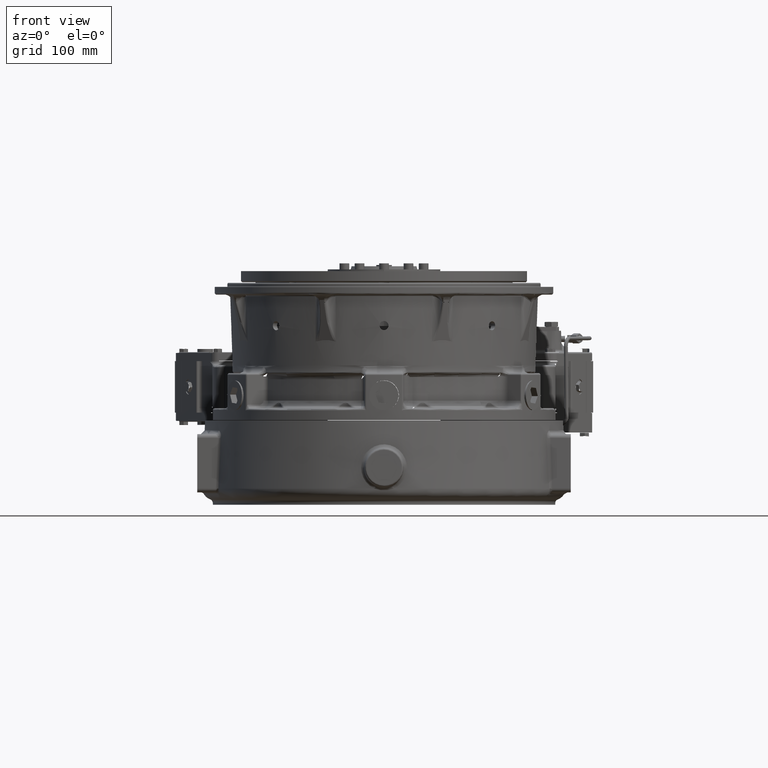
[diagram: clean part render]
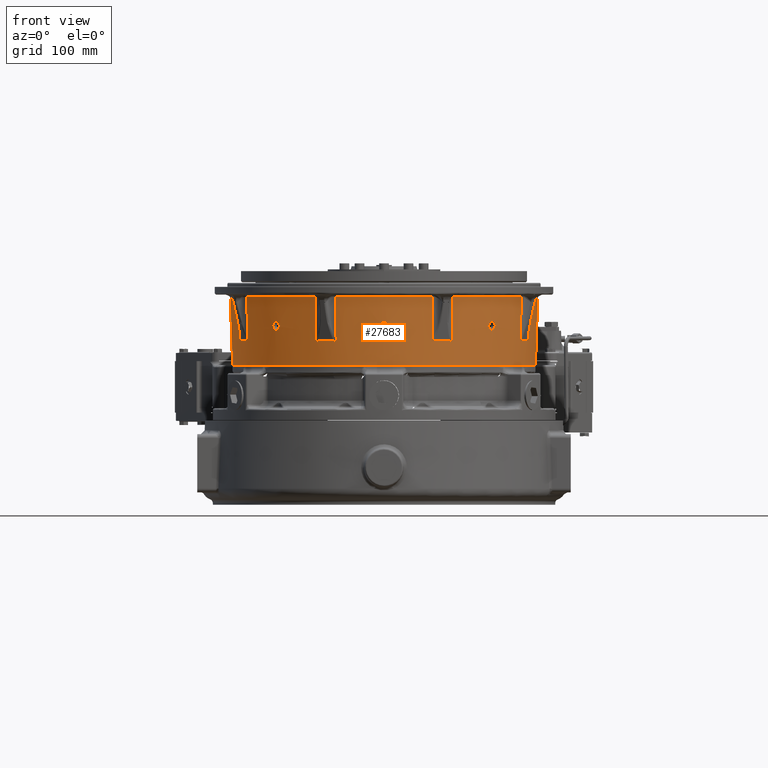
[diagram: same view with one face highlighted and labeled with its STEP entity id]
A machine part, front view. The second image highlights one B-rep face of the part: STEP entity #27683.
In plain terms, the highlighted conical surface has half-angle 2 deg.
Its self-contained STEP definition (entity closure, byte-faithful):
#113 = LINE ( 'NONE', #96304, #77769 ) ;
#346 = ORIENTED_EDGE ( 'NONE', *, *, #93084, .T. ) ;
#410 = ORIENTED_EDGE ( 'NONE', *, *, #104007, .T. ) ;
#816 = CARTESIAN_POINT ( 'NONE',  ( -100.2183333322097100, -227.6961214047557000, -9.449804460212078500 ) ) ;
#1491 = CARTESIAN_POINT ( 'NONE',  ( -250.9940910559222400, -2.342320196280900400E-018, 60.93489819042718400 ) ) ;
#1787 = CARTESIAN_POINT ( 'NONE',  ( 249.5169231496629700, -3.679563816112412700, 19.40194821412615100 ) ) ;
#2450 = ORIENTED_EDGE ( 'NONE', *, *, #118367, .T. ) ;
#2597 = B_SPLINE_CURVE_WITH_KNOTS ( 'NONE', 3,
 ( #79636, #166381, #123623, #36242, #138281, #50838, #152929, #65576 ),
 .UNSPECIFIED., .F., .F.,
 ( 4, 2, 2, 4 ),
 ( 1.288959077545831700E-016, 0.0009025367825192594700, 0.001353805173778824700, 0.001805073565038389900 ),
 .UNSPECIFIED. ) ;
#3239 = CARTESIAN_POINT ( 'NONE',  ( -221.9659547761087900, -111.5586079967920100, -12.67898017056965400 ) ) ;
#3261 = CARTESIAN_POINT ( 'NONE',  ( 111.2879578949107600, -222.1003324085622000, -12.72118009717270800 ) ) ;
#3484 = CARTESIAN_POINT ( 'NONE',  ( -111.5586079967912100, -221.9659547761091300, -12.67898017057236300 ) ) ;
#3512 = CARTESIAN_POINT ( 'NONE',  ( -238.2940664596691800, -78.82814924872489800, 60.92646230354289100 ) ) ;
#3874 = CARTESIAN_POINT ( 'NONE',  ( 237.9470035667418400, -78.93492022985181200, 52.45653624221922200 ) ) ;
#4038 = CARTESIAN_POINT ( 'NONE',  ( -112.5527010781521500, -224.3423264571619600, 60.90958207169841600 ) ) ;
#4295 = CARTESIAN_POINT ( 'NONE',  ( 249.0677901768884500, -2.585805769048509900, 6.154267351912878300 ) ) ;
#4668 = CARTESIAN_POINT ( 'NONE',  ( -179.5788840619370300, -173.2465370089363700, 18.86862636663028400 ) ) ;
#4935 = CARTESIAN_POINT ( 'NONE',  ( 249.1808207169722500, -7.294327632190746000, 12.06566399890916400 ) ) ;
#5294 = CARTESIAN_POINT ( 'NONE',  ( -174.7878123660976500, -178.1334053801694200, 19.98499080898047000 ) ) ;
#5314 = VERTEX_POINT ( 'NONE', #151502 ) ;
#5349 = ORIENTED_EDGE ( 'NONE', *, *, #108961, .T. ) ;
#5419 = ORIENTED_EDGE ( 'NONE', *, *, #141828, .T. ) ;
#5611 = CARTESIAN_POINT ( 'NONE',  ( -2.697525987788705500E-014, -249.5776210294380600, 20.37238749999999900 ) ) ;
#5925 = CARTESIAN_POINT ( 'NONE',  ( -171.4322985897826500, -181.1549901001740500, 15.61865409558963900 ) ) ;
#6149 = B_SPLINE_CURVE_WITH_KNOTS ( 'NONE', 3,
 ( #37611, #22891, #52229, #154301, #66939, #169016, #81631, #183782, #96271, #8829, #110921, #23540, #125604, #38265, #140287, #52877, #154940, #67589, #169640, #82260, #184406, #96915, #9479, #111527, #24173, #126236, #38892, #140919, #53510, #155592, #68228, #173234, #108749, #21355, #123468, #36078, #138106, #50683, #152773, #65430, #167488, #80106, #182248 ),
 .UNSPECIFIED., .F., .F.,
 ( 4, 2, 2, 2, 2, 2, 2, 2, 2, 2, 2, 2, 2, 2, 2, 2, 2, 2, 1, 2, 2, 4 ),
 ( 0.03443665302224129700, 0.03587116242817090000, 0.03658841713113569800, 0.03730567183410048900, 0.03874018124003005700, 0.04017469064595962500, 0.04160920005188920000, 0.04232645475485401200, 0.04304370945781881700, 0.04447821886374848900, 0.04591272826967816900, 0.04734723767560784100, 0.04806449237857267400, 0.04878174708153751300, 0.05021625648746724100, 0.05165076589339696900, 0.05308527529932670400, 0.05380253000229155700, 0.05451978470525642400, 0.05523703940822128500, 0.05595429411118614500, 0.05738880351711586600 ),
 .UNSPECIFIED. ) ;
#6201 = CARTESIAN_POINT ( 'NONE',  ( 0.9631031104574945300, -249.5745371774928600, 20.32465610581242300 ) ) ;
#6307 = CARTESIAN_POINT ( 'NONE',  ( 171.3676973200891800, -181.2051927605366200, 15.39187354653925300 ) ) ;
#6742 = CARTESIAN_POINT ( 'NONE',  ( -111.2861867603738200, -222.1014253639777100, -12.71198317609772700 ) ) ;
#6818 = CARTESIAN_POINT ( 'NONE',  ( 235.2716546133284500, -79.77536040136244800, -12.52615995202785500 ) ) ;
#6932 = CARTESIAN_POINT ( 'NONE',  ( 174.7893841879868300, -178.1319029822402100, 19.98577372818888900 ) ) ;
#7136 = EDGE_CURVE ( 'NONE', #75276, #37425, #103951, .T. ) ;
#7334 = CARTESIAN_POINT ( 'NONE',  ( 180.0482357133715000, -172.2191931111105700, 8.183136735723325100 ) ) ;
#7460 = CARTESIAN_POINT ( 'NONE',  ( 221.9659547761094400, -111.5586079967904100, -12.67898017057217400 ) ) ;
#7470 = CARTESIAN_POINT ( 'NONE',  ( 2.360706939928875600, -249.5530932801055100, 19.98669416359424400 ) ) ;
#7558 = CARTESIAN_POINT ( 'NONE',  ( 179.0375246349053100, -173.8326453363503100, 19.40139194612936900 ) ) ;
#7953 = CARTESIAN_POINT ( 'NONE',  ( 175.4418418218114100, -176.7893595896483100, 5.734223705187466700 ) ) ;
#8072 = CARTESIAN_POINT ( 'NONE',  ( 7.094562602216053700, -249.2868591467646700, 14.93610740221136800 ) ) ;
#8160 = CARTESIAN_POINT ( 'NONE',  ( 181.4119796639312200, -171.0285585239493600, 13.03019999999999700 ) ) ;
#8563 = CARTESIAN_POINT ( 'NONE',  ( 171.7360095941446900, -180.5553775613765000, 9.147497818331492800 ) ) ;
#8569 = CARTESIAN_POINT ( 'NONE',  ( -249.5537187550328600, -2.365304006908956100, 19.99757248063086100 ) ) ;
#8676 = CARTESIAN_POINT ( 'NONE',  ( 6.239033666946191700, -249.1077196593794600, 9.152125632269834600 ) ) ;
#8829 = CARTESIAN_POINT ( 'NONE',  ( -172.0078600590861400, -180.2679906227505700, 8.555541411574832700 ) ) ;
#8945 = CARTESIAN_POINT ( 'NONE',  ( 221.9659547761094400, -111.5586079967904100, -12.67898017057217400 ) ) ;
#9207 = CARTESIAN_POINT ( 'NONE',  ( -249.3064650520635400, -6.968085305731897000, 15.39353726007674600 ) ) ;
#9329 = CARTESIAN_POINT ( 'NONE',  ( 222.7718807094694000, -109.9524840866567100, -12.52615995202787900 ) ) ;
#9334 = CARTESIAN_POINT ( 'NONE',  ( -2.763673271857520100E-014, -249.0648328244894300, 5.688012499999997500 ) ) ;
#9410 = DIRECTION ( 'NONE',  ( -1.000000000000000000, 0.0000000000000000000, 2.764564645612004300E-017 ) ) ;
#9479 = CARTESIAN_POINT ( 'NONE',  ( -176.7998394104904800, -175.4313788443404000, 5.736354684307689100 ) ) ;
#11496 = CARTESIAN_POINT ( 'NONE',  ( -222.7718807094686000, -109.9524840866582700, -12.52615995202787700 ) ) ;
#12142 = CARTESIAN_POINT ( 'NONE',  ( -6.364313227730154000, -249.1118453323174200, 9.361231641757468600 ) ) ;
#12311 = CARTESIAN_POINT ( 'NONE',  ( 112.5527010781536900, -224.3423264571611400, 60.90958207169841600 ) ) ;
#12779 = CARTESIAN_POINT ( 'NONE',  ( -6.587758009084237400, -249.3477588822936500, 16.28085768902153100 ) ) ;
#12828 = CARTESIAN_POINT ( 'NONE',  ( -249.1361059684436700, -6.876345730197922300, 10.44549863671590900 ) ) ;
#13264 = CARTESIAN_POINT ( 'NONE',  ( -247.0598586614216900, 4.413389431856521600E-014, -51.72709999999997900 ) ) ;
#13417 = VERTEX_POINT ( 'NONE', #86741 ) ;
#13424 = CARTESIAN_POINT ( 'NONE',  ( -0.9615955571566913200, -249.5745501714043500, 20.32485817365054000 ) ) ;
#13469 = CARTESIAN_POINT ( 'NONE',  ( -249.0650804826196300, -0.9650385293360093100, 5.735923837270495300 ) ) ;
#13569 = CARTESIAN_POINT ( 'NONE',  ( -111.8963838528962900, -222.7733539652113600, 12.32343494379175800 ) ) ;
#13699 = CARTESIAN_POINT ( 'NONE',  ( -224.0310926411175700, -113.1728910782772900, 60.93489819042719100 ) ) ;
#15352 = CIRCLE ( 'NONE', #88592, 247.0637268876994300 ) ;
#15858 = CARTESIAN_POINT ( 'NONE',  ( 249.2767519867984400, -7.154752338187645200, 14.69618908072471400 ) ) ;
#16278 = VERTEX_POINT ( 'NONE', #175551 ) ;
#16497 = CARTESIAN_POINT ( 'NONE',  ( 249.5479224090842400, -2.590951248049990800, 19.90425165634809100 ) ) ;
#17041 = VERTEX_POINT ( 'NONE', #81417 ) ;
#17042 = CARTESIAN_POINT ( 'NONE',  ( -235.4556974725935800, -79.21561501830217400, -12.66737857491026500 ) ) ;
#18472 = VERTEX_POINT ( 'NONE', #161140 ) ;
#18550 = CARTESIAN_POINT ( 'NONE',  ( 237.6732452362046500, -78.82264061962138200, 44.00349049119784400 ) ) ;
#18769 = CARTESIAN_POINT ( 'NONE',  ( 238.2207585182499100, -79.04720217179951200, 60.90958207169843100 ) ) ;
#18960 = CARTESIAN_POINT ( 'NONE',  ( 249.0718243915318600, -3.673238840603210200, 6.654507786170657200 ) ) ;
#19004 = VECTOR ( 'NONE', #115324, 1000.000000000000000 ) ;
#19172 = AXIS2_PLACEMENT_3D ( 'NONE', #32575, #134613, #47230 ) ;
#19320 = CARTESIAN_POINT ( 'NONE',  ( -179.0337317158536900, -173.8356879489272400, 19.39069457398833800 ) ) ;
#19462 = CARTESIAN_POINT ( 'NONE',  ( 0.0000000000000000000, 1.387778780781445700E-014, 60.93489819042719100 ) ) ;
#19583 = CARTESIAN_POINT ( 'NONE',  ( 249.2130945176865600, -7.342187500002586000, 13.03020000000001500 ) ) ;
#19684 = DIRECTION ( 'NONE',  ( 1.618630747420212500E-017, 1.508887532773326900E-018, -1.000000000000000000 ) ) ;
#19946 = CARTESIAN_POINT ( 'NONE',  ( -174.1467115756502700, -178.7423181252887000, 19.61849091580965500 ) ) ;
#20152 = CARTESIAN_POINT ( 'NONE',  ( -236.1074037443227400, -78.18047255406244700, -4.344841877305895200 ) ) ;
#20451 = CARTESIAN_POINT ( 'NONE',  ( -224.3423264571615600, -112.5527010781529500, 60.90958207169841600 ) ) ;
#20584 = CARTESIAN_POINT ( 'NONE',  ( -171.2539674700625200, -181.2903904612049900, 14.92784351799993400 ) ) ;
#20965 = CARTESIAN_POINT ( 'NONE',  ( 171.6476469908130000, -180.9828720666890000, 16.28031285130775900 ) ) ;
#21355 = CARTESIAN_POINT ( 'NONE',  ( -180.5581880062147500, -171.7333689638911100, 9.153702633268801800 ) ) ;
#21415 = CARTESIAN_POINT ( 'NONE',  ( -111.5586079967912100, -221.9659547761091300, -12.67898017057236300 ) ) ;
#21480 = B_SPLINE_CURVE_WITH_KNOTS ( 'NONE', 3,
 ( #105404, #3261, #32656, #134684, #47290, #149367 ),
 .UNSPECIFIED., .F., .F.,
 ( 4, 2, 4 ),
 ( -2.329155441674399800E-005, 0.0008920263873098077900, 0.001807344329036359600 ),
 .UNSPECIFIED. ) ;
#21584 = CARTESIAN_POINT ( 'NONE',  ( 175.2905183360724400, -177.6485420541423300, 20.18456729388184500 ) ) ;
#21991 = CARTESIAN_POINT ( 'NONE',  ( 179.5523692200458200, -172.7018403996274000, 7.507473003519096200 ) ) ;
#22103 = CARTESIAN_POINT ( 'NONE',  ( 3.257386955380027900, -249.5307582417643200, 19.62785993666732800 ) ) ;
#22207 = CARTESIAN_POINT ( 'NONE',  ( 179.8333478786806000, -172.9666361815276900, 18.55848546904138600 ) ) ;
#22604 = CARTESIAN_POINT ( 'NONE',  ( 174.7751098417154800, -177.4577985650024900, 5.933202289582298200 ) ) ;
#22737 = CARTESIAN_POINT ( 'NONE',  ( 7.295220781476316100, -249.2480202938926900, 13.98992036790203700 ) ) ;
#22891 = CARTESIAN_POINT ( 'NONE',  ( -171.0166061554501500, -181.4000272954357100, 12.54636418373218900 ) ) ;
#23262 = CARTESIAN_POINT ( 'NONE',  ( 171.4965021342054900, -180.8133078123313200, 9.779886352417870300 ) ) ;
#23269 = CARTESIAN_POINT ( 'NONE',  ( -249.5301666516152200, -3.251619356237932700, 19.61752943609787500 ) ) ;
#23405 = CARTESIAN_POINT ( 'NONE',  ( 5.536925647548446100, -249.0907010815248300, 8.184089015311425200 ) ) ;
#23540 = CARTESIAN_POINT ( 'NONE',  ( -172.6954188493544400, -179.5583888699447600, 7.499622848933962700 ) ) ;
#23915 = CARTESIAN_POINT ( 'NONE',  ( -249.2482583231190500, -7.294172360455487300, 13.99586256530436200 ) ) ;
#24173 = CARTESIAN_POINT ( 'NONE',  ( -177.4626824282950100, -174.7702426965096800, 5.935049867737485700 ) ) ;
#25157 = CARTESIAN_POINT ( 'NONE',  ( -78.38858607522902800, -238.4392235311023600, 60.93489819042719100 ) ) ;
#25348 = CARTESIAN_POINT ( 'NONE',  ( 235.8374800289969900, -78.06978360046844000, -12.67898017056836800 ) ) ;
#25420 = CARTESIAN_POINT ( 'NONE',  ( 78.18047255406328600, -236.1074037443224500, -4.344841877305500900 ) ) ;
#25831 = CARTESIAN_POINT ( 'NONE',  ( 78.60861068954733400, -238.3668888784277200, 60.93489819042713400 ) ) ;
#25903 = CONICAL_SURFACE ( 'NONE', #95391, 247.0598586614216900, 0.03490648508555534200 ) ;
#26177 = CARTESIAN_POINT ( 'NONE',  ( -231.8705345935974300, -90.14040839675833200, -9.449804460212034100 ) ) ;
#26196 = CARTESIAN_POINT ( 'NONE',  ( -1.665174647062925200, -249.0659178581000800, 5.875268492592884000 ) ) ;
#26839 = CARTESIAN_POINT ( 'NONE',  ( -6.695106888760939500, -249.1257161137180000, 10.00676528961459900 ) ) ;
#27307 = ORIENTED_EDGE ( 'NONE', *, *, #148985, .T. ) ;
#27463 = CARTESIAN_POINT ( 'NONE',  ( -6.236567071777932000, -249.3788599392850100, 16.91236736062239000 ) ) ;
#27514 = CARTESIAN_POINT ( 'NONE',  ( -249.1115475701501800, -6.376354235032671600, 9.358120926019161300 ) ) ;
#27525 = EDGE_CURVE ( 'NONE', #36671, #143696, #173478, .T. ) ;
#27683 = ADVANCED_FACE ( 'NONE', ( #126372, #87639, #121794, #83045 ), #25903, .T. ) ;
#28113 = CARTESIAN_POINT ( 'NONE',  ( -2.697525987788705500E-014, -249.5776210294380600, 20.37238749999999900 ) ) ;
#28167 = CARTESIAN_POINT ( 'NONE',  ( -249.0648328244894600, 4.429279995367262900E-014, 5.688012500000042800 ) ) ;
#28262 = CARTESIAN_POINT ( 'NONE',  ( -112.3339435877879900, -223.8193383600781500, 44.71419940594484600 ) ) ;
#28972 = VERTEX_POINT ( 'NONE', #66093 ) ;
#30024 = B_SPLINE_CURVE_WITH_KNOTS ( 'NONE', 3,
 ( #13699, #158555, #130442, #43083 ),
 .UNSPECIFIED., .F., .F.,
 ( 4, 4 ),
 ( 0.0000000000000000000, 0.0006943651995679417700 ),
 .UNSPECIFIED. ) ;
#30120 = EDGE_CURVE ( 'NONE', #77267, #96547, #186257, .T. ) ;
#30561 = CARTESIAN_POINT ( 'NONE',  ( 249.3066889244306900, -6.956092003814497100, 15.39203448241571900 ) ) ;
#31177 = CARTESIAN_POINT ( 'NONE',  ( 249.5619102299174000, -1.899700430405610900, 20.12647489869093700 ) ) ;
#31725 = CARTESIAN_POINT ( 'NONE',  ( -235.6445925574732900, -78.64607099665360600, -12.71659567995234700 ) ) ;
#32575 = CARTESIAN_POINT ( 'NONE',  ( 0.0000000000000000000, 1.387778780781445700E-014, 60.93489819042719100 ) ) ;
#32600 = ORIENTED_EDGE ( 'NONE', *, *, #85665, .T. ) ;
#32656 = CARTESIAN_POINT ( 'NONE',  ( 111.0136611635685700, -222.2374419686422000, -12.72418693653068000 ) ) ;
#32900 = CARTESIAN_POINT ( 'NONE',  ( -238.4392235311021000, -78.38858607522979600, 60.93489819042719100 ) ) ;
#33275 = EDGE_CURVE ( 'NONE', #44496, #151730, #155341, .T. ) ;
#33278 = CARTESIAN_POINT ( 'NONE',  ( 236.8788280914943700, -78.49682819978315300, 19.47396953443860900 ) ) ;
#33282 = B_SPLINE_CURVE_WITH_KNOTS ( 'NONE', 3,
 ( #112136, #25420, #142182, #54747, #156820, #69464, #171548 ),
 .UNSPECIFIED., .F., .F.,
 ( 4, 3, 4 ),
 ( 0.0003822713355039008100, 0.02540000000000314600, 0.07401590397922330800 ),
 .UNSPECIFIED. ) ;
#33446 = CARTESIAN_POINT ( 'NONE',  ( -181.2972772829824400, -171.2471510426174700, 14.93694125008273200 ) ) ;
#33698 = CARTESIAN_POINT ( 'NONE',  ( 249.0810283615861100, -4.851407926740880500, 7.497875320551088400 ) ) ;
#34063 = CARTESIAN_POINT ( 'NONE',  ( -178.5919947293529600, -174.3060610004645800, 19.72207238623920500 ) ) ;
#34075 = CARTESIAN_POINT ( 'NONE',  ( -78.82264061962223400, -237.6732452362043700, 44.00349049119782300 ) ) ;
#34170 = DIRECTION ( 'NONE',  ( -1.000000000000000000, 0.0000000000000000000, 2.764564645612004300E-017 ) ) ;
#34189 = CARTESIAN_POINT ( 'NONE',  ( 79.77536040136641300, -235.2716546133272900, -12.52615995202697400 ) ) ;
#34684 = ORIENTED_EDGE ( 'NONE', *, *, #105106, .T. ) ;
#34689 = CARTESIAN_POINT ( 'NONE',  ( -173.6850471664161300, -179.1738662462465200, 19.26739749098198800 ) ) ;
#35055 = CARTESIAN_POINT ( 'NONE',  ( 171.0404064058588700, -181.4238275458493800, 13.50980616493460200 ) ) ;
#35212 = CARTESIAN_POINT ( 'NONE',  ( -224.0693571520107500, -112.4385224181141900, 52.45653624221920100 ) ) ;
#35312 = CARTESIAN_POINT ( 'NONE',  ( -171.0868296734717500, -181.4031742747978100, 13.99102747101912100 ) ) ;
#35515 = CARTESIAN_POINT ( 'NONE',  ( -109.9524840866573800, -222.7718807094691200, -12.52615995202766200 ) ) ;
#35580 = CARTESIAN_POINT ( 'NONE',  ( 222.7718807094694000, -109.9524840866567100, -12.52615995202787900 ) ) ;
#35695 = CARTESIAN_POINT ( 'NONE',  ( 172.2318355610490200, -180.4865089573886800, 17.51042645216242400 ) ) ;
#36078 = CARTESIAN_POINT ( 'NONE',  ( -180.8156421314230600, -171.4943697639858700, 9.786375426079937200 ) ) ;
#36242 = CARTESIAN_POINT ( 'NONE',  ( 78.78906150228297600, -235.5970637034582800, -12.70998251020615700 ) ) ;
#36326 = CARTESIAN_POINT ( 'NONE',  ( 176.1345857849393300, -176.8214597568319800, 20.37226679484389500 ) ) ;
#36671 = VERTEX_POINT ( 'NONE', #116554 ) ;
#36727 = CARTESIAN_POINT ( 'NONE',  ( 179.0131872183672800, -173.2312871279438000, 6.917616740401409300 ) ) ;
#36855 = CARTESIAN_POINT ( 'NONE',  ( 4.476753902732458100, -249.4852931141934400, 18.86941332930079100 ) ) ;
#36948 = CARTESIAN_POINT ( 'NONE',  ( 180.4865377361072700, -172.2317848476377300, 17.51006238948978600 ) ) ;
#37358 = CARTESIAN_POINT ( 'NONE',  ( 174.2903695613502700, -177.9446701138685700, 6.153576625394671300 ) ) ;
#37425 = VERTEX_POINT ( 'NONE', #114520 ) ;
#37482 = CARTESIAN_POINT ( 'NONE',  ( 7.342340966651915000, -249.2048956776648400, 12.79564651408557900 ) ) ;
#37611 = CARTESIAN_POINT ( 'NONE',  ( -171.0285585239474800, -181.4119796639329300, 13.03020000000001500 ) ) ;
#37704 = ORIENTED_EDGE ( 'NONE', *, *, #33275, .T. ) ;
#37995 = CARTESIAN_POINT ( 'NONE',  ( 171.2421384027030300, -181.0969557382218800, 10.66773152210291900 ) ) ;
#38002 = CARTESIAN_POINT ( 'NONE',  ( -249.5088644664671200, -3.882811144633348200, 19.26628284461147800 ) ) ;
#38116 = CARTESIAN_POINT ( 'NONE',  ( 4.479831671958744500, -249.0774375145989300, 7.193442215331376000 ) ) ;
#38265 = CARTESIAN_POINT ( 'NONE',  ( -173.3760805742911400, -178.8667186540195900, 6.793835708224783300 ) ) ;
#38368 = EDGE_CURVE ( 'NONE', #18472, #44496, #48886, .T. ) ;
#38631 = CARTESIAN_POINT ( 'NONE',  ( -249.2130945176866400, -7.342187499999099900, 13.03020000000004000 ) ) ;
#38892 = CARTESIAN_POINT ( 'NONE',  ( -177.9518601318345900, -174.2832180387032100, 6.157342907582987300 ) ) ;
#39004 = CARTESIAN_POINT ( 'NONE',  ( -227.6961214047552500, -100.2183333322103500, -9.449804460212062600 ) ) ;
#39309 =( BOUNDED_CURVE ( )  B_SPLINE_CURVE ( 3, ( #146319, #44239, #816, #102940 ),
 .UNSPECIFIED., .F., .F. ) 
 B_SPLINE_CURVE_WITH_KNOTS ( ( 4, 4 ),
 ( 6.208192351955339900, 6.358178262403834300 ),
 .UNSPECIFIED. ) 
 CURVE ( )  GEOMETRIC_REPRESENTATION_ITEM ( )  RATIONAL_B_SPLINE_CURVE ( ( 1.000000000000000000, 0.9981262306336318200, 0.9981262306336318200, 1.000000000000000000 ) ) 
 REPRESENTATION_ITEM ( '' )  );
#39676 = CARTESIAN_POINT ( 'NONE',  ( -171.0285585239474800, -181.4119796639329300, 13.03020000000001500 ) ) ;
#40354 = CARTESIAN_POINT ( 'NONE',  ( 224.0310926411182500, -113.1728910782757500, 60.93489819042719100 ) ) ;
#40914 = CARTESIAN_POINT ( 'NONE',  ( -2.361951107543644600, -249.0672238260762300, 6.074137133451064800 ) ) ;
#41499 = CIRCLE ( 'NONE', #66950, 250.9940910559222400 ) ;
#41538 = CARTESIAN_POINT ( 'NONE',  ( -7.108729034954225600, -249.1535604745135400, 11.13181230118593000 ) ) ;
#42166 = CARTESIAN_POINT ( 'NONE',  ( -5.529950772538986900, -249.4296511088215900, 17.88369387855154000 ) ) ;
#42214 = CARTESIAN_POINT ( 'NONE',  ( -249.0906355855299000, -5.533250876128597000, 8.179854091107685600 ) ) ;
#42308 = CARTESIAN_POINT ( 'NONE',  ( -111.5586079967912100, -221.9659547761091300, -12.67898017057236300 ) ) ;
#43057 = CARTESIAN_POINT ( 'NONE',  ( -238.4392235311021000, -78.38858607522979600, 60.93489819042719100 ) ) ;
#43083 = CARTESIAN_POINT ( 'NONE',  ( -224.3423264571615600, -112.5527010781529500, 60.90958207169841600 ) ) ;
#43952 = EDGE_CURVE ( 'NONE', #162098, #28972, #33282, .T. ) ;
#44239 = CARTESIAN_POINT ( 'NONE',  ( -90.14040839675794800, -231.8705345935978000, -9.449804460212030600 ) ) ;
#44466 = CARTESIAN_POINT ( 'NONE',  ( 247.0637268876994000, 4.413403365332700700E-014, -51.61632817510472600 ) ) ;
#44496 = VERTEX_POINT ( 'NONE', #69881 ) ;
#44607 = CARTESIAN_POINT ( 'NONE',  ( 249.2130945176865600, -7.342187500002586000, 13.03020000000001500 ) ) ;
#44756 = DIRECTION ( 'NONE',  ( 1.000000000000000000, 0.0000000000000000000, -2.808588146007360300E-017 ) ) ;
#45233 = CARTESIAN_POINT ( 'NONE',  ( 249.3475132422839200, -6.590286448820293700, 16.27573971322971500 ) ) ;
#45438 = CARTESIAN_POINT ( 'NONE',  ( 79.77536040136641300, -235.2716546133272900, -12.52615995202697400 ) ) ;
#45819 = CARTESIAN_POINT ( 'NONE',  ( -79.04720217180033600, -238.2207585182497100, 60.90958207169843100 ) ) ;
#45851 = CARTESIAN_POINT ( 'NONE',  ( 249.5745458857843500, -0.9622645120994820500, 20.32479212346766000 ) ) ;
#46402 = CARTESIAN_POINT ( 'NONE',  ( -235.7899731972995300, -78.21098295269300100, -12.69978550174055300 ) ) ;
#46497 = VERTEX_POINT ( 'NONE', #75341 ) ;
#47230 = DIRECTION ( 'NONE',  ( -1.000000000000000000, 0.0000000000000000000, 2.764564645612004300E-017 ) ) ;
#47269 = CARTESIAN_POINT ( 'NONE',  ( -222.2374419686422600, -111.0136611635684400, -12.72418693653117400 ) ) ;
#47288 = CARTESIAN_POINT ( 'NONE',  ( 238.2207585182499100, -79.04720217179951200, 60.90958207169843100 ) ) ;
#47290 = CARTESIAN_POINT ( 'NONE',  ( 110.2137987221556600, -222.6396887807788100, -12.60874514453952200 ) ) ;
#47908 = CARTESIAN_POINT ( 'NONE',  ( 235.8374800289969900, -78.06978360046844000, -12.67898017056836800 ) ) ;
#48065 = CARTESIAN_POINT ( 'NONE',  ( -181.0399333744649400, -171.5762481294812900, 16.06085050415495300 ) ) ;
#48337 = CARTESIAN_POINT ( 'NONE',  ( 249.0966302552946300, -5.840047081625085600, 8.554695422572216000 ) ) ;
#48685 = CARTESIAN_POINT ( 'NONE',  ( -177.8142502976134300, -175.1205411323316000, 20.13723340461804100 ) ) ;
#48701 = CARTESIAN_POINT ( 'NONE',  ( -78.49682819978400500, -236.8788280914941100, 19.47396953443849200 ) ) ;
#48725 = CARTESIAN_POINT ( 'NONE',  ( 224.3423264571623000, -112.5527010781514200, 60.90958207169841600 ) ) ;
#48886 = B_SPLINE_CURVE_WITH_KNOTS ( 'NONE', 3,
 ( #44607, #116003, #103304, #15858, #117885, #30561, #132596, #45233, #147284, #59878, #161969, #74608, #176721, #89246, #1787, #103936, #16497, #118510, #31177, #133241, #45851, #147891, #60511 ),
 .UNSPECIFIED., .F., .F.,
 ( 4, 2, 2, 1, 2, 2, 2, 2, 2, 2, 2, 4 ),
 ( 0.005735359596514081800, 0.007171286187643761400, 0.007889249483208600800, 0.008607212778773441100, 0.009325176074338281300, 0.01004313936990312200, 0.01147906596103279200, 0.01291499255216246500, 0.01435091914329213500, 0.01506888243885697400, 0.01578684573442180900, 0.01722277232555147500 ),
 .UNSPECIFIED. ) ;
#49178 = B_SPLINE_CURVE_WITH_KNOTS ( 'NONE', 3,
 ( #124690, #109346, #110004, #139367, #51915, #154004, #66638 ),
 .UNSPECIFIED., .F., .F.,
 ( 4, 3, 4 ),
 ( 2.533162327047359800E-005, 0.02540000000000294500, 0.07365896426698767500 ),
 .UNSPECIFIED. ) ;
#49299 = CARTESIAN_POINT ( 'NONE',  ( -172.9677914305561000, -179.8322979382611500, 18.55977014434326500 ) ) ;
#49415 = CIRCLE ( 'NONE', #130698, 250.9940910559222400 ) ;
#49661 = CARTESIAN_POINT ( 'NONE',  ( 171.0285585239448900, -181.4119796639354000, 13.03020000000000100 ) ) ;
#49796 = CARTESIAN_POINT ( 'NONE',  ( -223.7963871062987100, -112.3243397199679000, 44.00349049119781600 ) ) ;
#49924 = CARTESIAN_POINT ( 'NONE',  ( -171.0285585239474800, -181.4119796639329300, 13.03020000000001500 ) ) ;
#50138 = CARTESIAN_POINT ( 'NONE',  ( -236.3773240801476400, -78.29116384308481700, 3.989296494398107300 ) ) ;
#50302 = CARTESIAN_POINT ( 'NONE',  ( 172.8397641494298700, -179.9468118298871100, 18.38836268952678700 ) ) ;
#50314 = CARTESIAN_POINT ( 'NONE',  ( 109.9524840866581600, -222.7718807094689700, -12.52615995202711700 ) ) ;
#50322 = AXIS2_PLACEMENT_3D ( 'NONE', #184342, #96839, #9410 ) ;
#50683 = CARTESIAN_POINT ( 'NONE',  ( -181.0888525563198100, -171.2507326864647400, 10.66989340750831500 ) ) ;
#50704 = CARTESIAN_POINT ( 'NONE',  ( 181.3479621129322900, -171.0476823353539000, 12.07212647596315200 ) ) ;
#50838 = CARTESIAN_POINT ( 'NONE',  ( 78.35820667541455000, -235.7406412967191000, -12.71198317609835400 ) ) ;
#50867 = B_SPLINE_CURVE_WITH_KNOTS ( 'NONE', 3,
 ( #151641, #152281, #79613, #181770, #94271, #6818 ),
 .UNSPECIFIED., .F., .F.,
 ( 4, 2, 4 ),
 ( -2.329155441603560700E-005, 0.0008920263872931066300, 0.001807344329002248800 ),
 .UNSPECIFIED. ) ;
#50909 = CARTESIAN_POINT ( 'NONE',  ( 176.8187857520476000, -176.1361829419395000, 20.36044480526489100 ) ) ;
#51292 = CARTESIAN_POINT ( 'NONE',  ( -6.938893903907228400E-015, 1.387778780781445700E-014, -51.61632817510472600 ) ) ;
#51328 = CARTESIAN_POINT ( 'NONE',  ( 178.4204138707112300, -173.8178603032560500, 6.444330299949355900 ) ) ;
#51449 = CARTESIAN_POINT ( 'NONE',  ( 5.531727981224966200, -249.4295424766531300, 17.88170567318038800 ) ) ;
#51548 = CARTESIAN_POINT ( 'NONE',  ( 180.8296554510986000, -171.8302965151858900, 16.70055063184777600 ) ) ;
#51915 = CARTESIAN_POINT ( 'NONE',  ( 111.9929861413156100, -223.0042651847204000, 19.47396953443819400 ) ) ;
#51954 = CARTESIAN_POINT ( 'NONE',  ( 173.5252276336521500, -178.7154993879036600, 6.652634280235423200 ) ) ;
#52084 = CARTESIAN_POINT ( 'NONE',  ( 7.283773473585657000, -249.1814331514100600, 12.07482545538340300 ) ) ;
#52119 = CARTESIAN_POINT ( 'NONE',  ( 224.0310926411182500, -113.1728910782757500, 60.93489819042719100 ) ) ;
#52229 = CARTESIAN_POINT ( 'NONE',  ( -171.0395122967419500, -181.3554693209680400, 12.06752948716632000 ) ) ;
#52463 = ORIENTED_EDGE ( 'NONE', *, *, #161302, .T. ) ;
#52543 = LINE ( 'NONE', #58787, #164426 ) ;
#52604 = CARTESIAN_POINT ( 'NONE',  ( 171.0396590848362700, -181.3552019095034200, 12.06483814044263700 ) ) ;
#52608 = CARTESIAN_POINT ( 'NONE',  ( -249.4675587412690200, -4.849924634163397900, 18.56377082991849600 ) ) ;
#52748 = CARTESIAN_POINT ( 'NONE',  ( 3.677812976026440000, -249.0720980135214100, 6.671003278560961600 ) ) ;
#52877 = CARTESIAN_POINT ( 'NONE',  ( -173.8215357892092600, -178.4167073152000900, 6.441739629007614100 ) ) ;
#53508 = EDGE_CURVE ( 'NONE', #81894, #89737, #119640, .T. ) ;
#53510 = CARTESIAN_POINT ( 'NONE',  ( -178.7242628237810000, -173.5165666539954800, 6.660127213527324000 ) ) ;
#53595 = VERTEX_POINT ( 'NONE', #143984 ) ;
#54362 = EDGE_CURVE ( 'NONE', #66400, #177734, #165264, .T. ) ;
#54747 = CARTESIAN_POINT ( 'NONE',  ( 78.40185744383653300, -236.6472410691076800, 12.32343494379198700 ) ) ;
#55116 = ORIENTED_EDGE ( 'NONE', *, *, #160991, .T. ) ;
#55250 = ORIENTED_EDGE ( 'NONE', *, *, #147580, .T. ) ;
#55547 = CARTESIAN_POINT ( 'NONE',  ( -3.250486840144734200, -249.0699044410945400, 6.429376747418607400 ) ) ;
#55613 = CARTESIAN_POINT ( 'NONE',  ( -79.21607583851918800, -235.4555451961934100, -12.66730816669848500 ) ) ;
#55668 = VERTEX_POINT ( 'NONE', #135528 ) ;
#56174 = CARTESIAN_POINT ( 'NONE',  ( -7.342708612084625700, -249.1966333878174300, 12.55945746244327100 ) ) ;
#56800 = CARTESIAN_POINT ( 'NONE',  ( -4.475518882595467900, -249.4853497020339400, 18.87038459441620800 ) ) ;
#56841 = CARTESIAN_POINT ( 'NONE',  ( -249.0774107354218100, -4.476717838174112200, 7.191077752091845600 ) ) ;
#56846 = CARTESIAN_POINT ( 'NONE',  ( -224.3423264571615600, -112.5527010781529500, 60.90958207169841600 ) ) ;
#56983 = VERTEX_POINT ( 'NONE', #71890 ) ;
#57823 = B_SPLINE_CURVE_WITH_KNOTS ( 'NONE', 3,
 ( #8945, #81748, #67706, #169749, #82391, #184529, #97031 ),
 .UNSPECIFIED., .F., .F.,
 ( 4, 3, 4 ),
 ( 0.0003822713355043974800, 0.02540000000000319400, 0.07401590397922393200 ),
 .UNSPECIFIED. ) ;
#58235 = ORIENTED_EDGE ( 'NONE', *, *, #80657, .T. ) ;
#58481 = EDGE_CURVE ( 'NONE', #132909, #90900, #73927, .T. ) ;
#58770 = DIRECTION ( 'NONE',  ( -1.618630747420212500E-017, -1.508887532773326900E-018, 1.000000000000000000 ) ) ;
#58787 = CARTESIAN_POINT ( 'NONE',  ( -247.0598586614216900, 4.413389431856521600E-014, -51.72709999999997900 ) ) ;
#58880 = CIRCLE ( 'NONE', #142262, 250.9940910559222400 ) ;
#59467 =( BOUNDED_CURVE ( )  B_SPLINE_CURVE ( 3, ( #77630, #179756, #121595, #34189 ),
 .UNSPECIFIED., .F., .F. ) 
 B_SPLINE_CURVE_WITH_KNOTS ( ( 4, 4 ),
 ( 6.208192351955342600, 6.358178262403829900 ),
 .UNSPECIFIED. ) 
 CURVE ( )  GEOMETRIC_REPRESENTATION_ITEM ( )  RATIONAL_B_SPLINE_CURVE ( ( 1.000000000000000000, 0.9981262306336319300, 0.9981262306336319300, 1.000000000000000000 ) ) 
 REPRESENTATION_ITEM ( '' )  );
#59878 = CARTESIAN_POINT ( 'NONE',  ( 249.3786337492008200, -6.239358483464737800, 16.90789149978805700 ) ) ;
#60163 = EDGE_CURVE ( 'NONE', #160411, #151085, #49178, .T. ) ;
#60511 = CARTESIAN_POINT ( 'NONE',  ( 249.5776210294380600, 1.376899779009887300E-014, 20.37238750000000900 ) ) ;
#61955 = CARTESIAN_POINT ( 'NONE',  ( -222.6396887807805500, -110.2137987221516700, -12.60874514453924900 ) ) ;
#62133 = B_SPLINE_CURVE_WITH_KNOTS ( 'NONE', 3,
 ( #135094, #105187, #164496, #77123, #179245, #91761, #4295, #106416, #18960, #121054, #33698, #135730, #48337, #150385, #63050, #165124, #77740, #179860, #92387, #4935, #107033, #19583 ),
 .UNSPECIFIED., .F., .F.,
 ( 4, 2, 2, 2, 2, 2, 2, 2, 2, 2, 4 ),
 ( 0.04018551447043176800, 0.04161942850369135900, 0.04233638552032115100, 0.04305334253695095000, 0.04448725657021054100, 0.04592117060347013200, 0.04735508463672973000, 0.04807204165335952200, 0.04878899866998932100, 0.05022291270324891200, 0.05165682673650851000 ),
 .UNSPECIFIED. ) ;
#62141 = CARTESIAN_POINT ( 'NONE',  ( -181.4029605209866000, -171.0872766918830100, 13.99534998181016700 ) ) ;
#62203 = EDGE_CURVE ( 'NONE', #151730, #17041, #58880, .T. ) ;
#62386 = EDGE_CURVE ( 'NONE', #108211, #112060, #166100, .T. ) ;
#62782 = CARTESIAN_POINT ( 'NONE',  ( -180.8276085685324700, -171.8327301157769700, 16.70606049367862400 ) ) ;
#62873 = EDGE_CURVE ( 'NONE', #187903, #86489, #15352, .T. ) ;
#63050 = CARTESIAN_POINT ( 'NONE',  ( 249.1117513564506400, -6.361614724440939600, 9.356567298523687600 ) ) ;
#63113 = CARTESIAN_POINT ( 'NONE',  ( 231.8705345935982800, -90.14040839675661200, -9.449804460212082100 ) ) ;
#63410 = CARTESIAN_POINT ( 'NONE',  ( -176.8150128837103000, -176.1410613337398800, 20.37258194939979500 ) ) ;
#63426 = CARTESIAN_POINT ( 'NONE',  ( -78.06978360046923600, -235.8374800289966800, -12.67898017056866800 ) ) ;
#63686 = CARTESIAN_POINT ( 'NONE',  ( 238.2207585182499100, -79.04720217179951200, 60.90958207169843100 ) ) ;
#64041 = CARTESIAN_POINT ( 'NONE',  ( -172.4678204957967900, -180.2784600081701000, 17.87406647740233700 ) ) ;
#64259 = CARTESIAN_POINT ( 'NONE',  ( -235.8374800289962800, -78.06978360046997500, -12.67898017057232700 ) ) ;
#64559 = CARTESIAN_POINT ( 'NONE',  ( -223.0042651847207900, -111.9929861413148300, 19.47396953443815800 ) ) ;
#64889 = CARTESIAN_POINT ( 'NONE',  ( -237.1717594454013100, -78.61696368059226400, 28.51881702817943800 ) ) ;
#65050 = CARTESIAN_POINT ( 'NONE',  ( 173.2480628712603400, -179.5764624933461800, 18.85614526612143000 ) ) ;
#65430 = CARTESIAN_POINT ( 'NONE',  ( -181.2422561870849300, -171.1237117966200600, 11.36479376980976500 ) ) ;
#65444 = CARTESIAN_POINT ( 'NONE',  ( 181.2033006319056800, -171.1527556543775600, 11.12440715710871300 ) ) ;
#65545 = CARTESIAN_POINT ( 'NONE',  ( 222.5062189071841500, -110.4784217965734700, -12.66737857491049500 ) ) ;
#65576 = CARTESIAN_POINT ( 'NONE',  ( 78.06978360047081400, -235.8374800289960800, -12.67898017057200600 ) ) ;
#65660 = CARTESIAN_POINT ( 'NONE',  ( 177.4866711096994700, -175.4576184922321700, 20.24273759079333600 ) ) ;
#66000 = DIRECTION ( 'NONE',  ( 1.000000000000000000, 0.0000000000000000000, -2.808544172516769000E-017 ) ) ;
#66044 = CARTESIAN_POINT ( 'NONE',  ( 177.7900148059046000, -174.4440372170433300, 6.062921144377087400 ) ) ;
#66093 = CARTESIAN_POINT ( 'NONE',  ( 79.04720217180197000, -238.2207585182490800, 60.90958207169844500 ) ) ;
#66184 = CARTESIAN_POINT ( 'NONE',  ( 6.237497415596612500, -249.3787837451373800, 16.91085543211044100 ) ) ;
#66284 = CARTESIAN_POINT ( 'NONE',  ( 181.0404450148714400, -171.5756119120124800, 16.05895783585963300 ) ) ;
#66400 = VERTEX_POINT ( 'NONE', #146533 ) ;
#66638 = CARTESIAN_POINT ( 'NONE',  ( 111.5586079967927600, -221.9659547761084200, -12.67898017056959000 ) ) ;
#66682 = CARTESIAN_POINT ( 'NONE',  ( 172.6992390792096300, -179.5544864873299400, 7.494930474856254000 ) ) ;
#66811 = CARTESIAN_POINT ( 'NONE',  ( 7.107764360828314300, -249.1534576057258100, 11.12807657299298800 ) ) ;
#66939 = CARTESIAN_POINT ( 'NONE',  ( -171.1603406902362400, -181.1964859893139100, 11.13191697518211000 ) ) ;
#66950 = AXIS2_PLACEMENT_3D ( 'NONE', #19462, #121574, #34170 ) ;
#67322 = CARTESIAN_POINT ( 'NONE',  ( 171.0285585239448900, -181.4119796639354000, 13.03020000000000100 ) ) ;
#67331 = CARTESIAN_POINT ( 'NONE',  ( -249.4093550321643400, -5.839129767616557700, 17.50689744209569600 ) ) ;
#67450 = CARTESIAN_POINT ( 'NONE',  ( 3.033095393437043300, -249.0692135291343400, 6.339448927734070000 ) ) ;
#67589 = CARTESIAN_POINT ( 'NONE',  ( -174.4411537373712200, -177.7929168398873100, 6.064623542691086800 ) ) ;
#67706 = CARTESIAN_POINT ( 'NONE',  ( 222.5042216362354600, -111.7837959153691300, 3.989296494398110800 ) ) ;
#67923 = ORIENTED_EDGE ( 'NONE', *, *, #68760, .T. ) ;
#68228 = CARTESIAN_POINT ( 'NONE',  ( -179.5618325487881700, -172.6920517664718800, 7.503881448669783800 ) ) ;
#68760 = EDGE_CURVE ( 'NONE', #144392, #75452, #115514, .T. ) ;
#68875 = ORIENTED_EDGE ( 'NONE', *, *, #97311, .T. ) ;
#69078 = CARTESIAN_POINT ( 'NONE',  ( 224.2392691923091400, -112.7594314279901100, 60.92646230354289100 ) ) ;
#69214 = CIRCLE ( 'NONE', #19172, 250.9940910559222400 ) ;
#69464 = CARTESIAN_POINT ( 'NONE',  ( 78.83207864674599800, -237.6962651834494400, 44.71419940594493200 ) ) ;
#69881 = CARTESIAN_POINT ( 'NONE',  ( 249.5776210294380600, 1.376899779009887300E-014, 20.37238750000000900 ) ) ;
#70260 = CARTESIAN_POINT ( 'NONE',  ( -4.481354764699132100, -249.0774418806612100, 7.194113516637632900 ) ) ;
#70336 = CARTESIAN_POINT ( 'NONE',  ( -79.77536040136405400, -235.2716546133280000, -12.52615995202742200 ) ) ;
#70716 = ORIENTED_EDGE ( 'NONE', *, *, #86977, .T. ) ;
#70915 = CARTESIAN_POINT ( 'NONE',  ( -7.294750407275820700, -249.2481456270938900, 13.99311371404857600 ) ) ;
#70931 = DIRECTION ( 'NONE',  ( 1.618630747420212500E-017, 1.508887532773326900E-018, -1.000000000000000000 ) ) ;
#71551 = CARTESIAN_POINT ( 'NONE',  ( -3.255600625902041600, -249.5308093908429300, 19.62868924343971200 ) ) ;
#71600 = CARTESIAN_POINT ( 'NONE',  ( -249.0720818030289600, -3.674830396329437800, 6.669274611179098100 ) ) ;
#71890 = CARTESIAN_POINT ( 'NONE',  ( -235.2716546133277700, -79.77536040136422500, -12.52615995202787700 ) ) ;
#73511 = CARTESIAN_POINT ( 'NONE',  ( 0.0000000000000000000, 1.387778780781445700E-014, -51.72709999999998600 ) ) ;
#73927 = B_SPLINE_CURVE_WITH_KNOTS ( 'NONE', 3,
 ( #120787, #91499, #62141, #33446, #135469, #48065, #150127, #62782, #164865, #77488, #179604, #92121, #4668, #106770, #19320, #121445, #34063, #136090, #48685, #150757, #63410, #165482, #78090, #180241, #92758, #5294, #107395, #19946, #122055, #34689, #136714, #49299, #151383, #64041, #166089, #78701, #180886, #93376, #5925, #108008, #20584, #122682, #35312, #137356, #49924 ),
 .UNSPECIFIED., .F., .F.,
 ( 4, 2, 2, 2, 2, 2, 2, 2, 2, 2, 2, 2, 2, 1, 2, 2, 2, 2, 2, 2, 2, 2, 4 ),
 ( 0.01146730409166063000, 0.01290288839982193200, 0.01433847270798323200, 0.01505626486206388900, 0.01577405701614454500, 0.01720964132430585100, 0.01864522563246716000, 0.01936301778654781600, 0.02008080994062846900, 0.02151639424878973000, 0.02295197855695099000, 0.02438756286511224700, 0.02510535501919290700, 0.02582314717327356700, 0.02654093932735422700, 0.02725873148143487900, 0.02869431578959619200, 0.02941210794367684500, 0.03012990009775749800, 0.03156548440591876900, 0.03228327655999940100, 0.03300106871408003300, 0.03443665302224129700 ),
 .UNSPECIFIED. ) ;
#74198 = CARTESIAN_POINT ( 'NONE',  ( 247.0598586614216900, 1.387778780781445700E-014, -51.72709999999999300 ) ) ;
#74314 = CARTESIAN_POINT ( 'NONE',  ( -249.0648328244894600, 4.429279995367262900E-014, 5.688012500000042800 ) ) ;
#74608 = CARTESIAN_POINT ( 'NONE',  ( 249.4294731788804400, -5.532839533993374000, 17.88043226759959500 ) ) ;
#75276 = VERTEX_POINT ( 'NONE', #52119 ) ;
#75341 = CARTESIAN_POINT ( 'NONE',  ( 171.0285585239448900, -181.4119796639354000, 13.03020000000000100 ) ) ;
#75452 = VERTEX_POINT ( 'NONE', #25348 ) ;
#76069 = CARTESIAN_POINT ( 'NONE',  ( -238.2207585182494000, -79.04720217180113200, 60.90958207169841600 ) ) ;
#76483 = ORIENTED_EDGE ( 'NONE', *, *, #93540, .F. ) ;
#76929 = CARTESIAN_POINT ( 'NONE',  ( 238.3668888784284300, -78.60861068954484700, 60.93489819042719100 ) ) ;
#77123 = CARTESIAN_POINT ( 'NONE',  ( 249.0659162371424600, -1.664015958581829900, 5.875004768060402500 ) ) ;
#77267 = VERTEX_POINT ( 'NONE', #107734 ) ;
#77488 = CARTESIAN_POINT ( 'NONE',  ( -180.4872646821214100, -172.2309291823010300, 17.50825953961708900 ) ) ;
#77513 = B_SPLINE_CURVE_WITH_KNOTS ( 'NONE', 3,
 ( #118439, #89795, #17042, #119082, #31725, #133765, #46402, #148447 ),
 .UNSPECIFIED., .F., .F.,
 ( 4, 2, 2, 4 ),
 ( 6.245004513516505500E-017, 0.0009025367825188613500, 0.001353805173778273700, 0.001805073565037686300 ),
 .UNSPECIFIED. ) ;
#77630 = CARTESIAN_POINT ( 'NONE',  ( 109.9524840866581600, -222.7718807094689700, -12.52615995202711700 ) ) ;
#77740 = CARTESIAN_POINT ( 'NONE',  ( 249.1255931758264500, -6.692658840037186300, 10.00136175817140900 ) ) ;
#77769 = VECTOR ( 'NONE', #110947, 1000.000000000000000 ) ;
#77791 = CARTESIAN_POINT ( 'NONE',  ( 227.6961214047561000, -100.2183333322087300, -9.449804460212051900 ) ) ;
#78046 = B_SPLINE_CURVE_WITH_KNOTS ( 'NONE', 3,
 ( #42308, #188454, #100994, #13569, #115602, #28262, #130316 ),
 .UNSPECIFIED., .F., .F.,
 ( 4, 3, 4 ),
 ( 0.0003822713355037618700, 0.02540000000000314200, 0.07401590397922350200 ),
 .UNSPECIFIED. ) ;
#78090 = CARTESIAN_POINT ( 'NONE',  ( -175.7977586225983700, -177.1540100173367300, 20.32546926281352000 ) ) ;
#78701 = CARTESIAN_POINT ( 'NONE',  ( -172.1275444188267200, -180.5759322878437600, 17.30544679354275000 ) ) ;
#79076 = CARTESIAN_POINT ( 'NONE',  ( 171.0860586501663400, -181.4036583135699300, 13.98595646500947400 ) ) ;
#79212 = CARTESIAN_POINT ( 'NONE',  ( -221.9659547761087900, -111.5586079967920100, -12.67898017056965400 ) ) ;
#79332 = B_SPLINE_CURVE_WITH_KNOTS ( 'NONE', 3,
 ( #166876, #124731, #168757, #81379, #183521, #96028, #8569, #110658, #23269, #125356, #38002, #140035, #52608, #154679, #67331, #169387, #81999, #184160, #96663, #9207, #111279, #23915, #125990, #38631 ),
 .UNSPECIFIED., .F., .F.,
 ( 4, 2, 2, 2, 2, 2, 2, 2, 2, 2, 2, 4 ),
 ( 0.02870974478895531300, 0.02942733830455925700, 0.03014493182016320100, 0.03158011885137108200, 0.03229771236697502600, 0.03301530588257897000, 0.03445049291378686500, 0.03588567994499475300, 0.03660327346059870400, 0.03732086697620264100, 0.03875605400741054300, 0.04019124103861843000 ),
 .UNSPECIFIED. ) ;
#79526 = CARTESIAN_POINT ( 'NONE',  ( -110.4784217965742400, -222.5062189071837800, -12.66737857491035200 ) ) ;
#79556 = CARTESIAN_POINT ( 'NONE',  ( -238.2207585182494000, -79.04720217180113200, 60.90958207169841600 ) ) ;
#79613 = CARTESIAN_POINT ( 'NONE',  ( 235.6441148626877600, -78.64708963646164400, -12.72418693653122500 ) ) ;
#79636 = CARTESIAN_POINT ( 'NONE',  ( 79.77536040136641300, -235.2716546133272900, -12.52615995202697400 ) ) ;
#79717 = CARTESIAN_POINT ( 'NONE',  ( 173.8332116518524800, -179.0370051779743500, 19.40195634071851300 ) ) ;
#79798 = CARTESIAN_POINT ( 'NONE',  ( -181.4119796639336400, -171.0285585239467400, 13.03020000000001800 ) ) ;
#80106 = CARTESIAN_POINT ( 'NONE',  ( -181.4001589240982900, -171.0167377841114800, 12.55169255535297300 ) ) ;
#80129 = CARTESIAN_POINT ( 'NONE',  ( 180.8224726073961800, -171.4869213809419400, 9.780328631375939000 ) ) ;
#80257 = CARTESIAN_POINT ( 'NONE',  ( 222.2370594627435000, -111.0147192319165000, -12.71659567995270400 ) ) ;
#80268 = CARTESIAN_POINT ( 'NONE',  ( -2.697525987788705500E-014, -249.5776210294380600, 20.37238749999999900 ) ) ;
#80352 = CARTESIAN_POINT ( 'NONE',  ( 178.1296388203401500, -174.7917431622626300, 19.98683938820191100 ) ) ;
#80563 = EDGE_CURVE ( 'NONE', #149798, #118974, #49415, .T. ) ;
#80657 = EDGE_CURVE ( 'NONE', #46497, #117919, #163272, .T. ) ;
#80763 = CARTESIAN_POINT ( 'NONE',  ( 176.8007284136465400, -175.4304907812428100, 5.736487097277543700 ) ) ;
#80871 = CARTESIAN_POINT ( 'NONE',  ( 6.588985909904975500, -249.3476401845052000, 16.27838784859660800 ) ) ;
#80982 = CARTESIAN_POINT ( 'NONE',  ( 181.2975667970129900, -171.2468207379076000, 14.93646708458526900 ) ) ;
#81375 = CARTESIAN_POINT ( 'NONE',  ( 172.2330713670756400, -180.0344994560768200, 8.178952670995457200 ) ) ;
#81379 = CARTESIAN_POINT ( 'NONE',  ( -249.5738237648167200, -0.9607085405713099400, 20.31327694813893800 ) ) ;
#81417 = CARTESIAN_POINT ( 'NONE',  ( 238.4392235311025800, -78.38858607522817600, 60.93489819042720500 ) ) ;
#81495 = CARTESIAN_POINT ( 'NONE',  ( 6.693787730659249000, -249.1256502208435100, 10.00386413604395300 ) ) ;
#81631 = CARTESIAN_POINT ( 'NONE',  ( -171.3042767599946500, -181.0272682618115700, 10.44225249510312500 ) ) ;
#81748 = CARTESIAN_POINT ( 'NONE',  ( 222.2350885753075100, -111.6712039766132000, -4.344841877305820600 ) ) ;
#81894 = VERTEX_POINT ( 'NONE', #5611 ) ;
#81999 = CARTESIAN_POINT ( 'NONE',  ( -249.3684784095222300, -6.360772373098888500, 16.70527693598156600 ) ) ;
#82132 = CARTESIAN_POINT ( 'NONE',  ( 1.907087248439234100, -249.0662099941160100, 5.923809470574400200 ) ) ;
#82260 = CARTESIAN_POINT ( 'NONE',  ( -175.4371466141898000, -176.7940592817806500, 5.734873828085237200 ) ) ;
#82391 = CARTESIAN_POINT ( 'NONE',  ( 223.2963475446317700, -112.1151712749434200, 28.51881702817937700 ) ) ;
#83045 = FACE_BOUND ( 'NONE', #109086, .T. ) ;
#83462 = CARTESIAN_POINT ( 'NONE',  ( -113.1728910782765500, -224.0310926411178800, 60.93489819042717700 ) ) ;
#83891 = CARTESIAN_POINT ( 'NONE',  ( 78.82814924872576500, -238.2940664596689000, 60.92646230354292000 ) ) ;
#84280 = CARTESIAN_POINT ( 'NONE',  ( -0.4794265111454724700, -249.0648328244894000, 5.688012499999993900 ) ) ;
#84935 = CARTESIAN_POINT ( 'NONE',  ( -5.539651164944735300, -249.0907472027528800, 8.187129578594836600 ) ) ;
#85101 = CARTESIAN_POINT ( 'NONE',  ( 113.1728910782780600, -224.0310926411170800, 60.93489819042719100 ) ) ;
#85568 = CARTESIAN_POINT ( 'NONE',  ( -7.093898045998554600, -249.2869652371034900, 14.93860174864536800 ) ) ;
#85612 = CARTESIAN_POINT ( 'NONE',  ( -249.1604270390223000, -7.155371806536012800, 11.36695344854740600 ) ) ;
#85665 = EDGE_CURVE ( 'NONE', #151085, #114594, #21480, .T. ) ;
#85778 = CARTESIAN_POINT ( 'NONE',  ( 111.5586079967927600, -221.9659547761084200, -12.67898017056959000 ) ) ;
#86188 = CARTESIAN_POINT ( 'NONE',  ( -2.360065455254751800, -249.5531075918864600, 19.98692231723265400 ) ) ;
#86232 = CARTESIAN_POINT ( 'NONE',  ( -249.0692022929322300, -3.029945351868654300, 6.338040983637907500 ) ) ;
#86489 = VERTEX_POINT ( 'NONE', #44466 ) ;
#86715 = CARTESIAN_POINT ( 'NONE',  ( -78.38858607522902800, -238.4392235311023600, 60.93489819042719100 ) ) ;
#86741 = CARTESIAN_POINT ( 'NONE',  ( -249.2130945176866400, -7.342187499999099900, 13.03020000000004000 ) ) ;
#86797 = CARTESIAN_POINT ( 'NONE',  ( 112.5527010781536900, -224.3423264571611400, 60.90958207169841600 ) ) ;
#86977 = EDGE_CURVE ( 'NONE', #53595, #36671, #112659, .T. ) ;
#87639 = FACE_BOUND ( 'NONE', #161365, .T. ) ;
#88399 = CARTESIAN_POINT ( 'NONE',  ( -224.0310926411175700, -113.1728910782772900, 60.93489819042719100 ) ) ;
#88592 = AXIS2_PLACEMENT_3D ( 'NONE', #51292, #153381, #66000 ) ;
#88843 = DIRECTION ( 'NONE',  ( 0.03489939680905901300, -1.507968364520667200E-018, 0.9993908305074465900 ) ) ;
#88871 = ORIENTED_EDGE ( 'NONE', *, *, #128566, .T. ) ;
#89025 =( BOUNDED_CURVE ( )  B_SPLINE_CURVE ( 3, ( #11496, #39004, #26177, #128250 ),
 .UNSPECIFIED., .F., .F. ) 
 B_SPLINE_CURVE_WITH_KNOTS ( ( 4, 4 ),
 ( 6.208192351955337300, 6.358178262403836100 ),
 .UNSPECIFIED. ) 
 CURVE ( )  GEOMETRIC_REPRESENTATION_ITEM ( )  RATIONAL_B_SPLINE_CURVE ( ( 1.000000000000000000, 0.9981262306336315900, 0.9981262306336315900, 1.000000000000000000 ) ) 
 REPRESENTATION_ITEM ( '' )  );
#89217 = CARTESIAN_POINT ( 'NONE',  ( -78.60861068954569900, -238.3668888784281700, 60.93489819042719100 ) ) ;
#89246 = CARTESIAN_POINT ( 'NONE',  ( 249.4852301195751100, -4.478222109371954800, 18.86834113568694300 ) ) ;
#89737 = VERTEX_POINT ( 'NONE', #145544 ) ;
#89795 = CARTESIAN_POINT ( 'NONE',  ( -235.3630654674265100, -79.49678220226050500, -12.60884221004458700 ) ) ;
#90284 = EDGE_CURVE ( 'NONE', #108744, #53595, #174422, .T. ) ;
#90900 = VERTEX_POINT ( 'NONE', #39676 ) ;
#91499 = CARTESIAN_POINT ( 'NONE',  ( -181.4238092612499400, -171.0403881212629900, 13.50906599839232500 ) ) ;
#91761 = CARTESIAN_POINT ( 'NONE',  ( 249.0672201061008500, -2.360355951793491300, 6.073601340950244100 ) ) ;
#92005 = ORIENTED_EDGE ( 'NONE', *, *, #122260, .T. ) ;
#92121 = CARTESIAN_POINT ( 'NONE',  ( -179.8293812456989500, -172.9710500781942800, 18.56410146177614000 ) ) ;
#92387 = CARTESIAN_POINT ( 'NONE',  ( 249.1533846160424200, -7.106972081774867600, 11.12533960301198900 ) ) ;
#92758 = CARTESIAN_POINT ( 'NONE',  ( -175.1196207685121600, -177.8140812079659000, 20.12495531464559000 ) ) ;
#93084 = EDGE_CURVE ( 'NONE', #89737, #81894, #187163, .T. ) ;
#93376 = CARTESIAN_POINT ( 'NONE',  ( -171.6491789626521400, -180.9816284275966900, 16.28464011606447300 ) ) ;
#93540 = EDGE_CURVE ( 'NONE', #187903, #164490, #130936, .T. ) ;
#93704 = CARTESIAN_POINT ( 'NONE',  ( 78.06978360047081400, -235.8374800289960800, -12.67898017057200600 ) ) ;
#93747 = CARTESIAN_POINT ( 'NONE',  ( 171.2547131596395800, -181.2898461478820600, 14.93117689753997000 ) ) ;
#94202 = CARTESIAN_POINT ( 'NONE',  ( -111.0147192319174300, -222.2370594627430500, -12.71659567995202700 ) ) ;
#94271 = CARTESIAN_POINT ( 'NONE',  ( 235.3629581549167800, -79.49710924138506100, -12.60874514454020100 ) ) ;
#94380 = CARTESIAN_POINT ( 'NONE',  ( 174.6241182288536600, -178.2898987937561800, 19.90380597815359600 ) ) ;
#94768 = CARTESIAN_POINT ( 'NONE',  ( 180.2667628167563100, -172.0090375709809500, 8.553386359092892000 ) ) ;
#94881 = CARTESIAN_POINT ( 'NONE',  ( 222.0322053927169500, -111.4251725744925100, -12.69978550177415500 ) ) ;
#94891 = CARTESIAN_POINT ( 'NONE',  ( 1.899637267078993400, -249.5619103142049400, 20.12647554128740200 ) ) ;
#94985 = CARTESIAN_POINT ( 'NONE',  ( 178.7489208342616400, -174.1408243402937300, 19.62743463998285900 ) ) ;
#95383 = CARTESIAN_POINT ( 'NONE',  ( 175.7781674998173000, -176.4526955853281700, 5.687829872905505000 ) ) ;
#95391 = AXIS2_PLACEMENT_3D ( 'NONE', #73511, #58770, #44756 ) ;
#95520 = CARTESIAN_POINT ( 'NONE',  ( 6.954972046263928400, -249.3068340114884900, 15.39529310139243100 ) ) ;
#95610 = CARTESIAN_POINT ( 'NONE',  ( 181.4238018171770600, -171.0403806771951200, 13.50876465996926800 ) ) ;
#95936 = ORIENTED_EDGE ( 'NONE', *, *, #43952, .T. ) ;
#96024 = CARTESIAN_POINT ( 'NONE',  ( 171.9206305612718800, -180.3602356899205600, 8.746214176203229900 ) ) ;
#96028 = CARTESIAN_POINT ( 'NONE',  ( -249.5625382951742500, -1.907589348695320400, 20.13650874430603100 ) ) ;
#96120 = ORIENTED_EDGE ( 'NONE', *, *, #62873, .T. ) ;
#96150 = CARTESIAN_POINT ( 'NONE',  ( 6.362478251622293100, -249.1117803463734500, 9.358025900374357800 ) ) ;
#96271 = CARTESIAN_POINT ( 'NONE',  ( -171.6420299064981000, -180.6547583190125600, 9.352862481021716700 ) ) ;
#96304 = CARTESIAN_POINT ( 'NONE',  ( 247.0598586614216900, 1.387778780781445700E-014, -51.72709999999999300 ) ) ;
#96547 = VERTEX_POINT ( 'NONE', #76069 ) ;
#96663 = CARTESIAN_POINT ( 'NONE',  ( -249.3372948268339800, -6.691829265267478500, 16.06089348608106000 ) ) ;
#96771 = CARTESIAN_POINT ( 'NONE',  ( 0.4795103977223894000, -249.0648328244894900, 5.688012499999994800 ) ) ;
#96839 = DIRECTION ( 'NONE',  ( 1.618630747420212500E-017, 1.508887532773326900E-018, -1.000000000000000000 ) ) ;
#96915 = CARTESIAN_POINT ( 'NONE',  ( -176.4622952485669300, -175.7685720764647800, 5.688380817911215600 ) ) ;
#97031 = CARTESIAN_POINT ( 'NONE',  ( 224.3423264571623000, -112.5527010781514200, 60.90958207169841600 ) ) ;
#97311 = EDGE_CURVE ( 'NONE', #102452, #154751, #41499, .T. ) ;
#97855 = VERTEX_POINT ( 'NONE', #151278 ) ;
#99589 = CARTESIAN_POINT ( 'NONE',  ( -6.241108280237257900, -249.1077845194441800, 9.155472841187805200 ) ) ;
#99608 = ORIENTED_EDGE ( 'NONE', *, *, #118697, .T. ) ;
#99648 = ORIENTED_EDGE ( 'NONE', *, *, #167029, .T. ) ;
#99768 = CARTESIAN_POINT ( 'NONE',  ( 112.7594314279924100, -224.2392691923080300, 60.92646230354289100 ) ) ;
#100212 = CARTESIAN_POINT ( 'NONE',  ( -6.792367166727892400, -249.3271875879992200, 15.84843701982812500 ) ) ;
#100263 = CARTESIAN_POINT ( 'NONE',  ( -249.1417349735230000, -6.956948265805496400, 10.67088509888644800 ) ) ;
#100860 = CARTESIAN_POINT ( 'NONE',  ( -1.665619704916552200, -249.5656283139946100, 20.18496588952765300 ) ) ;
#100910 = CARTESIAN_POINT ( 'NONE',  ( -249.0662078081273000, -1.905791749062497800, 5.923462217411527700 ) ) ;
#100994 = CARTESIAN_POINT ( 'NONE',  ( -111.7837959153698900, -222.5042216362351400, 3.989296494398306700 ) ) ;
#102452 = VERTEX_POINT ( 'NONE', #165595 ) ;
#102940 = CARTESIAN_POINT ( 'NONE',  ( -109.9524840866573800, -222.7718807094691200, -12.52615995202766200 ) ) ;
#103304 = CARTESIAN_POINT ( 'NONE',  ( 249.2478606808223600, -7.295732258347998200, 13.98578438167594100 ) ) ;
#103337 = EDGE_CURVE ( 'NONE', #143696, #179485, #39309, .T. ) ;
#103711 = B_SPLINE_CURVE_WITH_KNOTS ( 'NONE', 3,
 ( #170456, #158334, #173028, #85612, #187723, #100263, #12828, #114891, #27514, #129582, #42214, #144294, #56841, #158980, #71600, #173683, #86232, #188358, #100910, #13469, #115497, #28167 ),
 .UNSPECIFIED., .F., .F.,
 ( 4, 2, 2, 2, 2, 2, 2, 2, 2, 2, 4 ),
 ( 0.04019124103861843000, 0.04162516587064523500, 0.04234212828665863400, 0.04305909070267203300, 0.04449301553469883800, 0.04592694036672564200, 0.04736086519875244700, 0.04807782761476584600, 0.04879479003077925200, 0.05022871486280605600, 0.05166263969483286100 ),
 .UNSPECIFIED. ) ;
#103936 = CARTESIAN_POINT ( 'NONE',  ( 249.5307465449668600, -3.257717209365390300, 19.62766806767209700 ) ) ;
#103951 = CIRCLE ( 'NONE', #50322, 250.9940910559222400 ) ;
#104007 = EDGE_CURVE ( 'NONE', #75452, #108211, #50867, .T. ) ;
#104691 = VERTEX_POINT ( 'NONE', #48725 ) ;
#105106 = EDGE_CURVE ( 'NONE', #16278, #108744, #69214, .T. ) ;
#105187 = CARTESIAN_POINT ( 'NONE',  ( 249.0648328244894000, -0.4790902999210937500, 5.688012499999839400 ) ) ;
#105302 = ORIENTED_EDGE ( 'NONE', *, *, #166899, .T. ) ;
#105343 = CARTESIAN_POINT ( 'NONE',  ( -109.9524840866573800, -222.7718807094691200, -12.52615995202766200 ) ) ;
#105404 = CARTESIAN_POINT ( 'NONE',  ( 111.5586079967927600, -221.9659547761084200, -12.67898017056959000 ) ) ;
#105633 = CARTESIAN_POINT ( 'NONE',  ( -238.2207585182494000, -79.04720217180113200, 60.90958207169841600 ) ) ;
#106211 = CARTESIAN_POINT ( 'NONE',  ( 238.2940664596697200, -78.82814924872332100, 60.92646230354289100 ) ) ;
#106233 = ORIENTED_EDGE ( 'NONE', *, *, #90284, .T. ) ;
#106416 = CARTESIAN_POINT ( 'NONE',  ( 249.0698960495256800, -3.248368862968271200, 6.428358370598939300 ) ) ;
#106424 = CARTESIAN_POINT ( 'NONE',  ( 235.2716546133284500, -79.77536040136244800, -12.52615995202785500 ) ) ;
#106770 = CARTESIAN_POINT ( 'NONE',  ( -179.1738113768844600, -173.6850984788689800, 19.26734167989200600 ) ) ;
#106779 = CARTESIAN_POINT ( 'NONE',  ( -78.93492022985262200, -237.9470035667415300, 52.45653624221921500 ) ) ;
#107033 = CARTESIAN_POINT ( 'NONE',  ( 249.1963778428488800, -7.342187500002587800, 12.55170331092243600 ) ) ;
#107131 = CARTESIAN_POINT ( 'NONE',  ( 0.0000000000000000000, 1.387778780781445700E-014, 60.93489819042719100 ) ) ;
#107395 = CARTESIAN_POINT ( 'NONE',  ( -174.4616598937619800, -178.4452075688301400, 19.82319500531545800 ) ) ;
#107424 = ORIENTED_EDGE ( 'NONE', *, *, #171805, .T. ) ;
#107734 = CARTESIAN_POINT ( 'NONE',  ( -235.8374800289962800, -78.06978360046997500, -12.67898017057232700 ) ) ;
#108008 = CARTESIAN_POINT ( 'NONE',  ( -171.3670987511893000, -181.2056554630011600, 15.38972221100062400 ) ) ;
#108211 = VERTEX_POINT ( 'NONE', #106424 ) ;
#108382 = CARTESIAN_POINT ( 'NONE',  ( 171.4319760410714100, -181.1552383201445500, 15.61747367682527700 ) ) ;
#108744 = VERTEX_POINT ( 'NONE', #25157 ) ;
#108749 = CARTESIAN_POINT ( 'NONE',  ( -180.2660259233454100, -172.0097253364850500, 8.551652461921246800 ) ) ;
#108766 = CARTESIAN_POINT ( 'NONE',  ( 181.4119796639312200, -171.0285585239493600, 13.03019999999999700 ) ) ;
#108819 = CARTESIAN_POINT ( 'NONE',  ( -111.4251725744953800, -222.0322053927147900, -12.69978550179307700 ) ) ;
#108896 = CARTESIAN_POINT ( 'NONE',  ( 222.6395334105995700, -110.2141058551409000, -12.60884221004454800 ) ) ;
#108961 = EDGE_CURVE ( 'NONE', #104691, #75276, #166508, .T. ) ;
#108990 = CARTESIAN_POINT ( 'NONE',  ( 175.1229757271004800, -177.8108420416042700, 20.12624884220190700 ) ) ;
#109086 = EDGE_LOOP ( 'NONE', ( #88871, #58235 ) ) ;
#109346 = CARTESIAN_POINT ( 'NONE',  ( 112.4385224181149900, -224.0693571520103800, 52.45653624221920800 ) ) ;
#109387 = CARTESIAN_POINT ( 'NONE',  ( 179.6811051113983200, -172.5761052894706600, 7.670580535007555800 ) ) ;
#109527 = CARTESIAN_POINT ( 'NONE',  ( 2.590044900192909300, -249.5479441579902000, 19.90460011805380000 ) ) ;
#109628 = ORIENTED_EDGE ( 'NONE', *, *, #58481, .T. ) ;
#109629 = CARTESIAN_POINT ( 'NONE',  ( 179.5787945444292000, -173.2466410984724500, 18.86881177328232100 ) ) ;
#110004 = CARTESIAN_POINT ( 'NONE',  ( 112.3243397199686900, -223.7963871062982800, 44.00349049119783000 ) ) ;
#110037 = CARTESIAN_POINT ( 'NONE',  ( 174.9418553394427800, -177.2905348785709500, 5.874263079123559300 ) ) ;
#110151 = CARTESIAN_POINT ( 'NONE',  ( 7.153653719192554700, -249.2769493358462400, 14.70093450569261300 ) ) ;
#110653 = CARTESIAN_POINT ( 'NONE',  ( 171.6511731159880000, -180.6459770974750300, 9.354234344971596100 ) ) ;
#110658 = CARTESIAN_POINT ( 'NONE',  ( -249.5365769500094800, -3.031694102395392100, 19.72156416701424700 ) ) ;
#110781 = CARTESIAN_POINT ( 'NONE',  ( 5.840313135886609600, -249.0966342341737100, 8.554979534474570700 ) ) ;
#110921 = CARTESIAN_POINT ( 'NONE',  ( -172.2228591423562400, -180.0444515605573500, 8.177488552013056000 ) ) ;
#110947 = DIRECTION ( 'NONE',  ( 0.03489939680905901300, -1.507968364520667200E-018, 0.9993908305074465900 ) ) ;
#111279 = CARTESIAN_POINT ( 'NONE',  ( -249.2865161829250000, -7.106720537007325900, 14.93597486155676000 ) ) ;
#111527 = CARTESIAN_POINT ( 'NONE',  ( -177.2979787483236900, -174.9344332893169300, 5.876757136041211600 ) ) ;
#111911 = VECTOR ( 'NONE', #88843, 1000.000000000000000 ) ;
#111956 = ORIENTED_EDGE ( 'NONE', *, *, #117061, .T. ) ;
#112060 = VERTEX_POINT ( 'NONE', #9329 ) ;
#112136 = CARTESIAN_POINT ( 'NONE',  ( 78.06978360047081400, -235.8374800289960800, -12.67898017057200600 ) ) ;
#112659 = B_SPLINE_CURVE_WITH_KNOTS ( 'NONE', 3,
 ( #150144, #106779, #34075, #136103, #48701, #150774, #63426 ),
 .UNSPECIFIED., .F., .F.,
 ( 4, 3, 4 ),
 ( 2.533162327050157700E-005, 0.02540000000000300400, 0.07365896426698680100 ),
 .UNSPECIFIED. ) ;
#113027 = CARTESIAN_POINT ( 'NONE',  ( -247.0637268876994000, 1.387745342148331700E-014, -51.61632817510472600 ) ) ;
#113035 = EDGE_CURVE ( 'NONE', #55668, #104691, #57823, .T. ) ;
#113561 = CARTESIAN_POINT ( 'NONE',  ( -0.9556694945645584100, -249.0650725519149100, 5.734519779121202800 ) ) ;
#114214 = CARTESIAN_POINT ( 'NONE',  ( -6.591239731965332600, -249.1208014141466500, 9.786533791801707200 ) ) ;
#114520 = CARTESIAN_POINT ( 'NONE',  ( 113.1728910782780600, -224.0310926411170800, 60.93489819042719100 ) ) ;
#114594 = VERTEX_POINT ( 'NONE', #50314 ) ;
#114844 = CARTESIAN_POINT ( 'NONE',  ( -6.361379627454757800, -249.3684247083269000, 16.70418696688650700 ) ) ;
#114891 = CARTESIAN_POINT ( 'NONE',  ( -249.1204244591140500, -6.602437427374226800, 9.783060471665461200 ) ) ;
#115324 = DIRECTION ( 'NONE',  ( -0.03489939680905904100, 2.765975094918081100E-018, 0.9993908305074465900 ) ) ;
#115456 = CARTESIAN_POINT ( 'NONE',  ( -0.4847128526681444600, -249.5776210294379800, 20.37238749999999100 ) ) ;
#115497 = CARTESIAN_POINT ( 'NONE',  ( -249.0648328244895700, -0.4787650028615522700, 5.688012500000099600 ) ) ;
#115514 = B_SPLINE_CURVE_WITH_KNOTS ( 'NONE', 3,
 ( #47288, #3874, #18550, #120640, #33278, #135290, #47908 ),
 .UNSPECIFIED., .F., .F.,
 ( 4, 3, 4 ),
 ( 2.533162327051544800E-005, 0.02540000000000298300, 0.07365896426698651000 ),
 .UNSPECIFIED. ) ;
#115602 = CARTESIAN_POINT ( 'NONE',  ( -112.1151712749442000, -223.2963475446314600, 28.51881702817964700 ) ) ;
#116003 = CARTESIAN_POINT ( 'NONE',  ( 249.2298346550714400, -7.342187500002586900, 13.50936827904399900 ) ) ;
#116554 = CARTESIAN_POINT ( 'NONE',  ( -78.06978360046923600, -235.8374800289966800, -12.67898017056866800 ) ) ;
#117061 = EDGE_CURVE ( 'NONE', #90900, #132909, #6149, .T. ) ;
#117308 = ORIENTED_EDGE ( 'NONE', *, *, #38368, .T. ) ;
#117885 = CARTESIAN_POINT ( 'NONE',  ( 249.2866870325721000, -7.095657650457634500, 14.93207291777412800 ) ) ;
#117919 = VERTEX_POINT ( 'NONE', #151138 ) ;
#118367 = EDGE_CURVE ( 'NONE', #56983, #77267, #77513, .T. ) ;
#118439 = CARTESIAN_POINT ( 'NONE',  ( -235.2716546133277700, -79.77536040136422500, -12.52615995202787700 ) ) ;
#118510 = CARTESIAN_POINT ( 'NONE',  ( 249.5530736223656200, -2.361676016165478000, 19.98638182322353200 ) ) ;
#118697 = EDGE_CURVE ( 'NONE', #28972, #16278, #151106, .T. ) ;
#118936 = ORIENTED_EDGE ( 'NONE', *, *, #142011, .T. ) ;
#118974 = VERTEX_POINT ( 'NONE', #1491 ) ;
#119082 = CARTESIAN_POINT ( 'NONE',  ( -235.5970637034588200, -78.78906150228134200, -12.70998251020569300 ) ) ;
#119640 = B_SPLINE_CURVE_WITH_KNOTS ( 'NONE', 3,
 ( #80268, #167646, #6201, #182386, #94891, #7470, #109527, #22103, #124218, #36855, #138883, #51449, #153546, #66184, #168258, #80871, #183025, #95520, #8072, #110151, #22737, #124861, #37482, #139524, #52084, #154173, #66811, #168869, #81495, #183647, #96150, #8676, #110781, #23405, #125473, #38116, #140149, #52748, #154808, #67450, #169507, #82132, #184275, #96771, #9334 ),
 .UNSPECIFIED., .F., .F.,
 ( 4, 2, 2, 2, 2, 2, 2, 2, 1, 2, 2, 2, 2, 2, 2, 2, 2, 2, 2, 2, 2, 2, 4 ),
 ( 0.01722277239642098400, 0.01865794378052535900, 0.01937552947257754900, 0.02009311516462973500, 0.02152828654873410700, 0.02296345793283848000, 0.02439862931694285200, 0.02511621500899503800, 0.02583380070104722400, 0.02655138639309941000, 0.02726897208515159700, 0.02870414346925596900, 0.02942172916130815500, 0.03013931485336034500, 0.03157448623746472000, 0.03229207192951690000, 0.03300965762156908600, 0.03444482900567345100, 0.03588000038977781600, 0.03659758608183000300, 0.03731517177388218900, 0.03875034315798654700, 0.04018551454209091900 ),
 .UNSPECIFIED. ) ;
#119978 = CARTESIAN_POINT ( 'NONE',  ( -222.1003324085675700, -111.2879578949070200, -12.72118009708168400 ) ) ;
#120238 = CARTESIAN_POINT ( 'NONE',  ( -238.3668888784278900, -78.60861068954646700, 60.93489819042719100 ) ) ;
#120640 = CARTESIAN_POINT ( 'NONE',  ( 237.3994834934239300, -78.71036336519853200, 35.55044481939602700 ) ) ;
#120787 = CARTESIAN_POINT ( 'NONE',  ( -181.4119796639336400, -171.0285585239467400, 13.03020000000001800 ) ) ;
#120851 = EDGE_LOOP ( 'NONE', ( #76483, #96120, #123503, #92005, #117308, #37704, #153344, #55116, #67923, #410, #186543, #107424, #135419, #5349, #128646, #52463, #126251, #32600, #5419, #121537, #95936, #99608, #34684, #106233, #70716, #137442, #144411, #121502, #181451, #55250, #68875, #187906, #105302, #173692, #99648, #2450, #133358, #27307, #134895, #185300, #118936, #130843 ) ) ;
#121054 = CARTESIAN_POINT ( 'NONE',  ( 249.0774187636238000, -4.478656531287384700, 7.192069266592164400 ) ) ;
#121445 = CARTESIAN_POINT ( 'NONE',  ( -178.7431830238891200, -174.1457947793527700, 19.61789545377402900 ) ) ;
#121502 = ORIENTED_EDGE ( 'NONE', *, *, #158747, .T. ) ;
#121537 = ORIENTED_EDGE ( 'NONE', *, *, #157746, .T. ) ;
#121574 = DIRECTION ( 'NONE',  ( 1.618630747420212500E-017, 1.508887532773326900E-018, -1.000000000000000000 ) ) ;
#121595 = CARTESIAN_POINT ( 'NONE',  ( 90.14040839675969600, -231.8705345935971400, -9.449804460211627300 ) ) ;
#121791 = DIRECTION ( 'NONE',  ( -1.000000000000000000, 0.0000000000000000000, 2.764564645612004300E-017 ) ) ;
#121794 = FACE_BOUND ( 'NONE', #168598, .T. ) ;
#121827 = B_SPLINE_CURVE_WITH_KNOTS ( 'NONE', 3,
 ( #35515, #137539, #79526, #181696, #94202, #6742, #108819, #21415 ),
 .UNSPECIFIED., .F., .F.,
 ( 4, 2, 2, 4 ),
 ( 1.398578778534940500E-017, 0.0009025367825188330500, 0.001353805173778261300, 0.001805073565037689700 ),
 .UNSPECIFIED. ) ;
#122055 = CARTESIAN_POINT ( 'NONE',  ( -173.8374836824016000, -179.0320551095785800, 19.39208579077444500 ) ) ;
#122260 = EDGE_CURVE ( 'NONE', #5314, #18472, #62133, .T. ) ;
#122682 = CARTESIAN_POINT ( 'NONE',  ( -171.2059337694523700, -181.3245636423414500, 14.69501855183373700 ) ) ;
#122894 = B_SPLINE_CURVE_WITH_KNOTS ( 'NONE', 3,
 ( #179043, #76929, #106211, #18769 ),
 .UNSPECIFIED., .F., .F.,
 ( 4, 4 ),
 ( 1.387778780781445700E-017, 0.0006943651995679870900 ),
 .UNSPECIFIED. ) ;
#123051 = CARTESIAN_POINT ( 'NONE',  ( 171.8222811584109300, -180.8376486177656100, 16.70495445291020400 ) ) ;
#123468 = CARTESIAN_POINT ( 'NONE',  ( -180.6493792087613600, -171.6480039153018700, 9.362356143796354500 ) ) ;
#123503 = ORIENTED_EDGE ( 'NONE', *, *, #155579, .T. ) ;
#123623 = CARTESIAN_POINT ( 'NONE',  ( 79.21561501830389300, -235.4556974725928700, -12.66737857491051500 ) ) ;
#123701 = CARTESIAN_POINT ( 'NONE',  ( 175.7952731359195300, -177.1564333929607400, 20.32478064146575700 ) ) ;
#124095 = CARTESIAN_POINT ( 'NONE',  ( 179.2872507360194700, -172.9617260270277100, 7.202743040457586500 ) ) ;
#124218 = CARTESIAN_POINT ( 'NONE',  ( 3.679098152132246100, -249.5169368850380100, 19.40216787481633900 ) ) ;
#124331 = CARTESIAN_POINT ( 'NONE',  ( 180.2860183121742100, -172.4604726830956500, 17.87975903116180400 ) ) ;
#124690 = CARTESIAN_POINT ( 'NONE',  ( 112.5527010781536900, -224.3423264571611400, 60.90958207169841600 ) ) ;
#124726 = CARTESIAN_POINT ( 'NONE',  ( 174.4496047830155600, -177.7846284715824400, 6.072858956680957700 ) ) ;
#124731 = CARTESIAN_POINT ( 'NONE',  ( -249.5776210294380100, -0.2394680576046036000, 20.37238750000001600 ) ) ;
#124861 = CARTESIAN_POINT ( 'NONE',  ( 7.341875946083301400, -249.2299907694940400, 13.51357415133044700 ) ) ;
#125347 = CARTESIAN_POINT ( 'NONE',  ( 171.4264371040187900, -180.8903043025594900, 9.999789267952410300 ) ) ;
#125356 = CARTESIAN_POINT ( 'NONE',  ( -249.5163070913322400, -3.677099515605846600, 19.38982865974682900 ) ) ;
#125473 = CARTESIAN_POINT ( 'NONE',  ( 4.852297666303591900, -249.0810391813753600, 7.498695262590494800 ) ) ;
#125604 = CARTESIAN_POINT ( 'NONE',  ( -172.9541554886557700, -179.2945709155881100, 7.195854654072398700 ) ) ;
#125990 = CARTESIAN_POINT ( 'NONE',  ( -249.2298345358827600, -7.342187499999102600, 13.50936486739405900 ) ) ;
#126173 = CARTESIAN_POINT ( 'NONE',  ( -112.5527010781521500, -224.3423264571619600, 60.90958207169841600 ) ) ;
#126236 = CARTESIAN_POINT ( 'NONE',  ( -177.7893783782150200, -174.4448773021562100, 6.075135116757405000 ) ) ;
#126251 = ORIENTED_EDGE ( 'NONE', *, *, #60163, .T. ) ;
#126372 = FACE_OUTER_BOUND ( 'NONE', #120851, .T. ) ;
#127699 = CARTESIAN_POINT ( 'NONE',  ( 224.1355252145088200, -112.9661618580437900, 60.93489819042716200 ) ) ;
#127884 = CARTESIAN_POINT ( 'NONE',  ( 78.38858607523069100, -238.4392235311019300, 60.93489819042716200 ) ) ;
#128250 = CARTESIAN_POINT ( 'NONE',  ( -235.2716546133277700, -79.77536040136422500, -12.52615995202787700 ) ) ;
#128270 = CARTESIAN_POINT ( 'NONE',  ( -1.901406910406732600, -249.0662858283763800, 5.934407204345301800 ) ) ;
#128341 = CARTESIAN_POINT ( 'NONE',  ( -78.06978360046923600, -235.8374800289966800, -12.67898017056866800 ) ) ;
#128566 = EDGE_CURVE ( 'NONE', #117919, #46497, #147264, .T. ) ;
#128646 = ORIENTED_EDGE ( 'NONE', *, *, #7136, .T. ) ;
#128900 = CARTESIAN_POINT ( 'NONE',  ( -6.970489911714207000, -249.1415237529563200, 10.67402230406737500 ) ) ;
#129533 = CARTESIAN_POINT ( 'NONE',  ( -5.833854304858494500, -249.4097393962734400, 17.51427862563541300 ) ) ;
#129582 = CARTESIAN_POINT ( 'NONE',  ( -249.0965887161598900, -5.839035551566812600, 8.552731755140323200 ) ) ;
#130316 = CARTESIAN_POINT ( 'NONE',  ( -112.5527010781521500, -224.3423264571619600, 60.90958207169841600 ) ) ;
#130442 = CARTESIAN_POINT ( 'NONE',  ( -224.2392691923084000, -112.7594314279916300, 60.92646230354290500 ) ) ;
#130698 = AXIS2_PLACEMENT_3D ( 'NONE', #107131, #19684, #121791 ) ;
#130843 = ORIENTED_EDGE ( 'NONE', *, *, #180576, .T. ) ;
#130936 = LINE ( 'NONE', #13264, #19004 ) ;
#131508 = DIRECTION ( 'NONE',  ( -0.03489939680905904100, 2.765975094918081100E-018, 0.9993908305074465900 ) ) ;
#132596 = CARTESIAN_POINT ( 'NONE',  ( 249.3269295550231800, -6.794691792608993800, 15.84287073041128500 ) ) ;
#132710 = VERTEX_POINT ( 'NONE', #45438 ) ;
#132909 = VERTEX_POINT ( 'NONE', #79798 ) ;
#133203 = CARTESIAN_POINT ( 'NONE',  ( -78.82814924872413100, -238.2940664596694400, 60.92646230354292000 ) ) ;
#133241 = CARTESIAN_POINT ( 'NONE',  ( 249.5656116802940100, -1.666766360589791800, 20.18470450225811100 ) ) ;
#133358 = ORIENTED_EDGE ( 'NONE', *, *, #30120, .T. ) ;
#133765 = CARTESIAN_POINT ( 'NONE',  ( -235.7406412967195600, -78.35820667541304400, -12.71198317609816700 ) ) ;
#134613 = DIRECTION ( 'NONE',  ( 1.618630747420212500E-017, 1.508887532773326900E-018, -1.000000000000000000 ) ) ;
#134684 = CARTESIAN_POINT ( 'NONE',  ( 110.4779882717951800, -222.5064370806108200, -12.66730816669744400 ) ) ;
#134895 = ORIENTED_EDGE ( 'NONE', *, *, #80563, .T. ) ;
#135094 = CARTESIAN_POINT ( 'NONE',  ( 249.0648328244894600, 1.379115485302097700E-014, 5.688012500000009900 ) ) ;
#135290 = CARTESIAN_POINT ( 'NONE',  ( 236.3581603476396300, -78.28330155518774800, 3.397494536004103300 ) ) ;
#135419 = ORIENTED_EDGE ( 'NONE', *, *, #113035, .T. ) ;
#135469 = CARTESIAN_POINT ( 'NONE',  ( -181.2132407564461100, -171.3594046107603500, 15.39448667827817000 ) ) ;
#135528 = CARTESIAN_POINT ( 'NONE',  ( 221.9659547761094400, -111.5586079967904100, -12.67898017057217400 ) ) ;
#135730 = CARTESIAN_POINT ( 'NONE',  ( 249.0906968021026300, -5.536745287271793700, 8.183837771032701300 ) ) ;
#136090 = CARTESIAN_POINT ( 'NONE',  ( -178.1318775411884000, -174.7904593784302800, 19.99851331578912500 ) ) ;
#136103 = CARTESIAN_POINT ( 'NONE',  ( -78.71036336519937000, -237.3994834934236500, 35.55044481939599900 ) ) ;
#136714 = CARTESIAN_POINT ( 'NONE',  ( -173.2417068288268900, -179.5833303311911800, 18.86402839736826200 ) ) ;
#137356 = CARTESIAN_POINT ( 'NONE',  ( -171.0405198485572700, -181.4239409885427700, 13.51439836265237000 ) ) ;
#137442 = ORIENTED_EDGE ( 'NONE', *, *, #27525, .T. ) ;
#137539 = CARTESIAN_POINT ( 'NONE',  ( -110.2141058551416300, -222.6395334105993400, -12.60884221004464200 ) ) ;
#137725 = CARTESIAN_POINT ( 'NONE',  ( 172.4610314455178800, -180.2855182352072300, 17.88050251404617800 ) ) ;
#138106 = CARTESIAN_POINT ( 'NONE',  ( -180.9669320392590600, -171.3567410020791900, 10.21933525565782300 ) ) ;
#138119 = CARTESIAN_POINT ( 'NONE',  ( 181.3921713013151900, -171.0252153387824900, 12.55176645068657100 ) ) ;
#138281 = CARTESIAN_POINT ( 'NONE',  ( 78.64607099665521200, -235.6445925574726600, -12.71659567995254400 ) ) ;
#138350 = CARTESIAN_POINT ( 'NONE',  ( 176.6478104596993400, -176.3082515253181000, 20.37244751118832700 ) ) ;
#138757 = CARTESIAN_POINT ( 'NONE',  ( 178.7213440491119900, -173.5197972080029600, 6.671160402186214500 ) ) ;
#138883 = CARTESIAN_POINT ( 'NONE',  ( 4.854560728437694400, -249.4673054165474500, 18.55924710497924200 ) ) ;
#138973 = CARTESIAN_POINT ( 'NONE',  ( 180.7485634214438900, -171.9261948625236000, 16.90945307018370500 ) ) ;
#139367 = CARTESIAN_POINT ( 'NONE',  ( 112.2101529431944200, -223.5234163135731900, 35.55044481939601300 ) ) ;
#139400 = CARTESIAN_POINT ( 'NONE',  ( 173.8230446646774700, -178.4149719693315600, 6.427657220144745900 ) ) ;
#139524 = CARTESIAN_POINT ( 'NONE',  ( 7.330825887100474800, -249.1968553303168200, 12.55576523311526000 ) ) ;
#140031 = CARTESIAN_POINT ( 'NONE',  ( 171.1526766254234200, -181.2034210491985700, 11.12536308634183200 ) ) ;
#140035 = CARTESIAN_POINT ( 'NONE',  ( -249.4851698204035100, -4.479397937443714300, 18.86729249383290300 ) ) ;
#140149 = CARTESIAN_POINT ( 'NONE',  ( 3.883303706276912700, -249.0732783151288200, 6.794424298439154500 ) ) ;
#140287 = CARTESIAN_POINT ( 'NONE',  ( -173.5228819757981600, -178.7182254196278600, 6.668611048558464200 ) ) ;
#140919 = CARTESIAN_POINT ( 'NONE',  ( -178.4248224730568800, -173.8132710997583400, 6.434279050172189200 ) ) ;
#141497 = CARTESIAN_POINT ( 'NONE',  ( -112.7594314279908800, -224.2392691923088000, 60.92646230354289800 ) ) ;
#141767 = CARTESIAN_POINT ( 'NONE',  ( -78.35618145800496800, -235.7411208417752800, -12.72118009699935300 ) ) ;
#141828 = EDGE_CURVE ( 'NONE', #114594, #132710, #59467, .T. ) ;
#142011 = EDGE_CURVE ( 'NONE', #97855, #13417, #79332, .T. ) ;
#142182 = CARTESIAN_POINT ( 'NONE',  ( 78.29116384308564100, -236.3773240801473600, 3.989296494398579400 ) ) ;
#142262 = AXIS2_PLACEMENT_3D ( 'NONE', #158300, #70931, #172990 ) ;
#142984 = CARTESIAN_POINT ( 'NONE',  ( -2.587536421172563100, -249.0677948528492000, 6.154912637975331600 ) ) ;
#143063 = CARTESIAN_POINT ( 'NONE',  ( -78.64708963646765500, -235.6441148626857100, -12.72418693653137800 ) ) ;
#143604 = CARTESIAN_POINT ( 'NONE',  ( -7.295325213004047300, -249.1810494368437200, 12.07305090820851000 ) ) ;
#143696 = VERTEX_POINT ( 'NONE', #161710 ) ;
#143984 = CARTESIAN_POINT ( 'NONE',  ( -79.04720217180033600, -238.2207585182497100, 60.90958207169843100 ) ) ;
#144245 = CARTESIAN_POINT ( 'NONE',  ( -4.853109568623832400, -249.4673767721815500, 18.56048804772170500 ) ) ;
#144294 = CARTESIAN_POINT ( 'NONE',  ( -249.0809853417398800, -4.847504479096372200, 7.494459668370621900 ) ) ;
#144306 = CARTESIAN_POINT ( 'NONE',  ( 250.9940910559222400, 1.370779352332759100E-014, 60.93489819042719100 ) ) ;
#144392 = VERTEX_POINT ( 'NONE', #63686 ) ;
#144411 = ORIENTED_EDGE ( 'NONE', *, *, #103337, .T. ) ;
#145255 = EDGE_CURVE ( 'NONE', #184612, #162938, #78046, .T. ) ;
#145544 = CARTESIAN_POINT ( 'NONE',  ( -2.763673271857520100E-014, -249.0648328244894300, 5.688012499999997500 ) ) ;
#146319 = CARTESIAN_POINT ( 'NONE',  ( -79.77536040136405400, -235.2716546133280000, -12.52615995202742200 ) ) ;
#146533 = CARTESIAN_POINT ( 'NONE',  ( -221.9659547761087900, -111.5586079967920100, -12.67898017056965400 ) ) ;
#147264 = B_SPLINE_CURVE_WITH_KNOTS ( 'NONE', 3,
 ( #108766, #150895, #138119, #50704, #152787, #65444, #167503, #80129, #182265, #94768, #7334, #109387, #21991, #124095, #36727, #138757, #51328, #153426, #66044, #168133, #80763, #182901, #95383, #7953, #110037, #22604, #124726, #37358, #139400, #51954, #154038, #66682, #168747, #81375, #183515, #96024, #8563, #110653, #23262, #125347, #37995, #140031, #52604, #154673, #67322 ),
 .UNSPECIFIED., .F., .F.,
 ( 4, 2, 2, 2, 2, 2, 2, 1, 2, 2, 2, 2, 2, 2, 2, 2, 2, 2, 2, 2, 2, 2, 4 ),
 ( 0.02613562116733722900, 0.02685274356578731100, 0.02756986596423739000, 0.02900411076113756900, 0.03043835555803774800, 0.03187260035493792700, 0.03258972275338799900, 0.03330684515183806500, 0.03402396755028813000, 0.03474108994873820200, 0.03617533474563822800, 0.03760957954253825500, 0.03904382433943828800, 0.03976094673788829700, 0.04047806913633830700, 0.04191231393323845100, 0.04334655873013858200, 0.04406368112858870300, 0.04478080352703880900, 0.04549792592548892300, 0.04621504832393903700, 0.04764929312083926400, 0.04908353791773949200 ),
 .UNSPECIFIED. ) ;
#147284 = CARTESIAN_POINT ( 'NONE',  ( 249.3681921125306900, -6.364086184526840400, 16.69950654805087400 ) ) ;
#147580 = EDGE_CURVE ( 'NONE', #162938, #102452, #172712, .T. ) ;
#147891 = CARTESIAN_POINT ( 'NONE',  ( 249.5776210294379800, -0.4850527706635643400, 20.37238750000017600 ) ) ;
#148447 = CARTESIAN_POINT ( 'NONE',  ( -235.8374800289962800, -78.06978360046997500, -12.67898017057232700 ) ) ;
#148985 = EDGE_CURVE ( 'NONE', #96547, #149798, #182029, .T. ) ;
#149343 = CARTESIAN_POINT ( 'NONE',  ( -222.5064370806133500, -110.4779882717901800, -12.66730816669698500 ) ) ;
#149367 = CARTESIAN_POINT ( 'NONE',  ( 109.9524840866581600, -222.7718807094689700, -12.52615995202711700 ) ) ;
#149798 = VERTEX_POINT ( 'NONE', #43057 ) ;
#150127 = CARTESIAN_POINT ( 'NONE',  ( -180.9737895208452000, -171.6571870056991400, 16.28078892299502600 ) ) ;
#150144 = CARTESIAN_POINT ( 'NONE',  ( -79.04720217180033600, -238.2207585182497100, 60.90958207169843100 ) ) ;
#150385 = CARTESIAN_POINT ( 'NONE',  ( 249.1076990926889600, -6.238355207602334800, 9.151052535386622100 ) ) ;
#150757 = CARTESIAN_POINT ( 'NONE',  ( -177.1571863626890600, -175.7945113906870600, 20.32468536966503000 ) ) ;
#150774 = CARTESIAN_POINT ( 'NONE',  ( -78.28330155518857200, -236.3581603476393100, 3.397494536003896800 ) ) ;
#150895 = CARTESIAN_POINT ( 'NONE',  ( 181.4060750946339300, -171.0226539546520100, 12.79118108870129900 ) ) ;
#151085 = VERTEX_POINT ( 'NONE', #85778 ) ;
#151106 = B_SPLINE_CURVE_WITH_KNOTS ( 'NONE', 3,
 ( #186055, #83891, #25831, #127884 ),
 .UNSPECIFIED., .F., .F.,
 ( 4, 4 ),
 ( 0.0000000000000000000, 0.0006943651995679663800 ),
 .UNSPECIFIED. ) ;
#151138 = CARTESIAN_POINT ( 'NONE',  ( 181.4119796639312200, -171.0285585239493600, 13.03019999999999700 ) ) ;
#151278 = CARTESIAN_POINT ( 'NONE',  ( -249.5776210294380600, 4.433344163306656000E-014, 20.37238750000004500 ) ) ;
#151383 = CARTESIAN_POINT ( 'NONE',  ( -172.5887993251307600, -180.1712619750410900, 18.05196619724721400 ) ) ;
#151455 = VERTEX_POINT ( 'NONE', #56846 ) ;
#151502 = CARTESIAN_POINT ( 'NONE',  ( 249.0648328244894600, 1.379115485302097700E-014, 5.688012500000009900 ) ) ;
#151641 = CARTESIAN_POINT ( 'NONE',  ( 235.8374800289969900, -78.06978360046844000, -12.67898017056836800 ) ) ;
#151730 = VERTEX_POINT ( 'NONE', #144306 ) ;
#151902 = CARTESIAN_POINT ( 'NONE',  ( -223.5234163135736200, -112.2101529431936300, 35.55044481939599900 ) ) ;
#152199 = CARTESIAN_POINT ( 'NONE',  ( -222.7718807094686000, -109.9524840866582700, -12.52615995202787700 ) ) ;
#152232 = CARTESIAN_POINT ( 'NONE',  ( -236.6472410691079600, -78.40185744383569500, 12.32343494379144200 ) ) ;
#152281 = CARTESIAN_POINT ( 'NONE',  ( 235.7411208417799200, -78.35618145799027400, -12.72118009700379600 ) ) ;
#152370 = CARTESIAN_POINT ( 'NONE',  ( 172.9718746413522000, -179.8276610555718100, 18.54971587130193800 ) ) ;
#152773 = CARTESIAN_POINT ( 'NONE',  ( -181.1959420404572300, -171.1607866811904400, 11.12936414304970100 ) ) ;
#152787 = CARTESIAN_POINT ( 'NONE',  ( 181.3174931962008400, -171.0677426982099700, 11.83153878369621400 ) ) ;
#152929 = CARTESIAN_POINT ( 'NONE',  ( 78.21098295268338100, -235.7899731973000400, -12.69978550181377800 ) ) ;
#153020 = CARTESIAN_POINT ( 'NONE',  ( 177.1548326873831100, -175.7958464275737400, 20.31319666182256600 ) ) ;
#153344 = ORIENTED_EDGE ( 'NONE', *, *, #62203, .T. ) ;
#153381 = DIRECTION ( 'NONE',  ( -1.618630747420212500E-017, -1.508887532773326900E-018, 1.000000000000000000 ) ) ;
#153426 = CARTESIAN_POINT ( 'NONE',  ( 178.2645106784382300, -173.9725580048294400, 6.340241218082764100 ) ) ;
#153546 = CARTESIAN_POINT ( 'NONE',  ( 5.835407467402858700, -249.4096299536874400, 17.51219846087460000 ) ) ;
#153648 = CARTESIAN_POINT ( 'NONE',  ( 180.9753827668305600, -171.6552486979765300, 16.27569762882269100 ) ) ;
#154004 = CARTESIAN_POINT ( 'NONE',  ( 111.7758045872482700, -222.4851113539381500, 3.397494536003291100 ) ) ;
#154038 = CARTESIAN_POINT ( 'NONE',  ( 172.9586999580732300, -179.2899401287281500, 7.190636326046712800 ) ) ;
#154173 = CARTESIAN_POINT ( 'NONE',  ( 7.248180638308430600, -249.1740847777808800, 11.83468239934520800 ) ) ;
#154301 = CARTESIAN_POINT ( 'NONE',  ( -171.1238499495840700, -181.2421001048360300, 11.36426192896813200 ) ) ;
#154673 = CARTESIAN_POINT ( 'NONE',  ( 171.0167236850061600, -181.4001448249966300, 12.55112181899861800 ) ) ;
#154679 = CARTESIAN_POINT ( 'NONE',  ( -249.4293861551730300, -5.534624370505278900, 17.87892232285966200 ) ) ;
#154751 = VERTEX_POINT ( 'NONE', #88399 ) ;
#154808 = CARTESIAN_POINT ( 'NONE',  ( 3.253275391096365900, -249.0700668692864500, 6.443706968175226800 ) ) ;
#154940 = CARTESIAN_POINT ( 'NONE',  ( -173.9740874071740700, -178.2629714380628300, 6.339338457475306200 ) ) ;
#155341 = LINE ( 'NONE', #74198, #111911 ) ;
#155579 = EDGE_CURVE ( 'NONE', #86489, #5314, #113, .T. ) ;
#155592 = CARTESIAN_POINT ( 'NONE',  ( -179.2921889970111500, -172.9565006881096000, 7.193471136194157900 ) ) ;
#156820 = CARTESIAN_POINT ( 'NONE',  ( 78.61696368059308800, -237.1717594454010200, 28.51881702817980000 ) ) ;
#157631 = CARTESIAN_POINT ( 'NONE',  ( -3.675626770977038000, -249.0718366301392500, 6.655859735403717900 ) ) ;
#157711 = CARTESIAN_POINT ( 'NONE',  ( -79.49710924138320000, -235.3629581549174100, -12.60874514454099500 ) ) ;
#157746 = EDGE_CURVE ( 'NONE', #132710, #162098, #2597, .T. ) ;
#158283 = CARTESIAN_POINT ( 'NONE',  ( -7.341657542519731000, -249.2301189909483700, 13.51706017192848600 ) ) ;
#158300 = CARTESIAN_POINT ( 'NONE',  ( 0.0000000000000000000, 1.387778780781445700E-014, 60.93489819042719100 ) ) ;
#158334 = CARTESIAN_POINT ( 'NONE',  ( -249.1963692217788700, -7.342187499999099000, 12.55145654214365800 ) ) ;
#158555 = CARTESIAN_POINT ( 'NONE',  ( -224.1355252145081100, -112.9661618580453100, 60.93489819042719100 ) ) ;
#158747 = EDGE_CURVE ( 'NONE', #179485, #184612, #121827, .T. ) ;
#158923 = CARTESIAN_POINT ( 'NONE',  ( -3.677229235478625600, -249.5170034037713500, 19.40326915975861500 ) ) ;
#158980 = CARTESIAN_POINT ( 'NONE',  ( -249.0732603644459000, -3.880361553994523300, 6.792598699716085000 ) ) ;
#160411 = VERTEX_POINT ( 'NONE', #86797 ) ;
#160991 = EDGE_CURVE ( 'NONE', #17041, #144392, #122894, .T. ) ;
#161140 = CARTESIAN_POINT ( 'NONE',  ( 249.2130945176865600, -7.342187500002586000, 13.03020000000001500 ) ) ;
#161302 = EDGE_CURVE ( 'NONE', #37425, #160411, #162722, .T. ) ;
#161365 = EDGE_LOOP ( 'NONE', ( #111956, #109628 ) ) ;
#161710 = CARTESIAN_POINT ( 'NONE',  ( -79.77536040136405400, -235.2716546133280000, -12.52615995202742200 ) ) ;
#161969 = CARTESIAN_POINT ( 'NONE',  ( 249.4095420477846400, -5.836739938217392300, 17.51056356213395300 ) ) ;
#162098 = VERTEX_POINT ( 'NONE', #93704 ) ;
#162722 = B_SPLINE_CURVE_WITH_KNOTS ( 'NONE', 3,
 ( #85101, #187228, #99768, #12311 ),
 .UNSPECIFIED., .F., .F.,
 ( 4, 4 ),
 ( 0.0000000000000000000, 0.0006943651995679920800 ),
 .UNSPECIFIED. ) ;
#162938 = VERTEX_POINT ( 'NONE', #4038 ) ;
#163272 = B_SPLINE_CURVE_WITH_KNOTS ( 'NONE', 3,
 ( #49661, #35055, #79076, #181242, #93747, #6307, #108382, #20965, #123051, #35695, #137725, #50302, #152370, #65050, #167104, #79717, #181865, #94380, #6932, #108990, #21584, #123701, #36326, #138350, #50909, #153020, #65660, #167739, #80352, #182494, #94985, #7558, #109629, #22207, #124331, #36948, #138973, #51548, #153648, #66284, #168347, #80982, #183132, #95610, #8160 ),
 .UNSPECIFIED., .F., .F.,
 ( 4, 2, 2, 2, 2, 2, 2, 2, 2, 2, 2, 2, 2, 1, 2, 2, 2, 2, 2, 2, 2, 2, 4 ),
 ( 0.003162413907316098300, 0.004598239361067431700, 0.005316152087943087900, 0.006034064814818745900, 0.007469890268570035000, 0.008905715722321325800, 0.009623628449196950900, 0.01034154117607257600, 0.01177736662982387800, 0.01249527935669950000, 0.01321319208357512100, 0.01464901753732636800, 0.01536693026420201900, 0.01608484299107767300, 0.01680275571795332100, 0.01752066844482897200, 0.01895649389858032600, 0.02039231935233167700, 0.02182814480608303400, 0.02254605753295872000, 0.02326397025983441300, 0.02469979571358581900, 0.02613562116733723200 ),
 .UNSPECIFIED. ) ;
#164044 = CARTESIAN_POINT ( 'NONE',  ( -222.7718807094686000, -109.9524840866582700, -12.52615995202787700 ) ) ;
#164426 = VECTOR ( 'NONE', #131508, 1000.000000000000000 ) ;
#164490 = VERTEX_POINT ( 'NONE', #74314 ) ;
#164496 = CARTESIAN_POINT ( 'NONE',  ( 249.0650722385628600, -0.9550014912047163400, 5.734455215083019500 ) ) ;
#164865 = CARTESIAN_POINT ( 'NONE',  ( -180.7476055008076200, -171.9273159620364600, 16.91171684084740400 ) ) ;
#165124 = CARTESIAN_POINT ( 'NONE',  ( 249.1206882758088200, -6.588683171397631700, 9.781358176438454100 ) ) ;
#165181 = CARTESIAN_POINT ( 'NONE',  ( 235.2716546133284500, -79.77536040136244800, -12.52615995202785500 ) ) ;
#165264 = B_SPLINE_CURVE_WITH_KNOTS ( 'NONE', 3,
 ( #3239, #119978, #47269, #149343, #61955, #164044 ),
 .UNSPECIFIED., .F., .F.,
 ( 4, 2, 4 ),
 ( -2.329155441548336200E-005, 0.0008920263872807301400, 0.001807344328976943800 ),
 .UNSPECIFIED. ) ;
#165482 = CARTESIAN_POINT ( 'NONE',  ( -176.1368200645521800, -176.8192186567545700, 20.37219183583071200 ) ) ;
#165595 = CARTESIAN_POINT ( 'NONE',  ( -113.1728910782765500, -224.0310926411178800, 60.93489819042717700 ) ) ;
#166089 = CARTESIAN_POINT ( 'NONE',  ( -172.2369421193695300, -180.4810213119499700, 17.50050942779768800 ) ) ;
#166100 =( BOUNDED_CURVE ( )  B_SPLINE_CURVE ( 3, ( #165181, #63113, #77791, #179921 ),
 .UNSPECIFIED., .F., .F. ) 
 B_SPLINE_CURVE_WITH_KNOTS ( ( 4, 4 ),
 ( 6.208192351955335500, 6.358178262403835200 ),
 .UNSPECIFIED. ) 
 CURVE ( )  GEOMETRIC_REPRESENTATION_ITEM ( )  RATIONAL_B_SPLINE_CURVE ( ( 1.000000000000000000, 0.9981262306336315900, 0.9981262306336315900, 1.000000000000000000 ) ) 
 REPRESENTATION_ITEM ( '' )  );
#166381 = CARTESIAN_POINT ( 'NONE',  ( 79.49678220226239500, -235.3630654674260300, -12.60884221004373800 ) ) ;
#166508 = B_SPLINE_CURVE_WITH_KNOTS ( 'NONE', 3,
 ( #171123, #69078, #127699, #40354 ),
 .UNSPECIFIED., .F., .F.,
 ( 4, 4 ),
 ( 0.0000000000000000000, 0.0006943651995679538100 ),
 .UNSPECIFIED. ) ;
#166611 = CARTESIAN_POINT ( 'NONE',  ( -222.4851113539385200, -111.7758045872474800, 3.397494536003230700 ) ) ;
#166876 = CARTESIAN_POINT ( 'NONE',  ( -249.5776210294380600, 4.433344163306656000E-014, 20.37238750000004500 ) ) ;
#166899 = EDGE_CURVE ( 'NONE', #151455, #66400, #170889, .T. ) ;
#166937 = CARTESIAN_POINT ( 'NONE',  ( -237.6962651834497300, -78.83207864674518800, 44.71419940594474000 ) ) ;
#167029 = EDGE_CURVE ( 'NONE', #177734, #56983, #89025, .T. ) ;
#167104 = CARTESIAN_POINT ( 'NONE',  ( 173.3922600956614400, -179.4442899772364800, 19.00113026414933500 ) ) ;
#167488 = CARTESIAN_POINT ( 'NONE',  ( -181.3566124208383900, -171.0387064251019900, 12.07550167805498200 ) ) ;
#167503 = CARTESIAN_POINT ( 'NONE',  ( 181.0966791249987900, -171.2423954353069500, 10.66705194179213800 ) ) ;
#167639 = CARTESIAN_POINT ( 'NONE',  ( 222.3045610439425300, -110.8800017007662900, -12.70998251020605500 ) ) ;
#167646 = CARTESIAN_POINT ( 'NONE',  ( 0.4847976642107965600, -249.5776210294380100, 20.37238749999999900 ) ) ;
#167739 = CARTESIAN_POINT ( 'NONE',  ( 177.8102392482119900, -175.1235955436063400, 20.12643689654188300 ) ) ;
#168133 = CARTESIAN_POINT ( 'NONE',  ( 177.4656111503944100, -174.7672038104297200, 5.924123557561867600 ) ) ;
#168258 = CARTESIAN_POINT ( 'NONE',  ( 6.362498668989316800, -249.3683290883444700, 16.70226621778613600 ) ) ;
#168347 = CARTESIAN_POINT ( 'NONE',  ( 181.2127926387507300, -171.3599573774075700, 15.39606014889733900 ) ) ;
#168598 = EDGE_LOOP ( 'NONE', ( #346, #187599 ) ) ;
#168747 = CARTESIAN_POINT ( 'NONE',  ( 172.3452084382177500, -179.9185930836263800, 8.001600316434881700 ) ) ;
#168757 = CARTESIAN_POINT ( 'NONE',  ( -249.5768683175983500, -0.4794968482322650700, 20.36070158617917900 ) ) ;
#168869 = CARTESIAN_POINT ( 'NONE',  ( 6.969217278270917900, -249.1414312489271800, 10.67035457049704000 ) ) ;
#169016 = CARTESIAN_POINT ( 'NONE',  ( -171.2503718027949700, -181.0892693858359300, 10.67146477754994300 ) ) ;
#169387 = CARTESIAN_POINT ( 'NONE',  ( -249.3787756960516900, -6.237532535834848300, 16.91066903557335600 ) ) ;
#169507 = CARTESIAN_POINT ( 'NONE',  ( 2.365047279647607900, -249.0670851686665500, 6.062655969537775700 ) ) ;
#169640 = CARTESIAN_POINT ( 'NONE',  ( -174.7660677144621100, -177.4667472878843500, 5.924177563417940100 ) ) ;
#169749 = CARTESIAN_POINT ( 'NONE',  ( 222.7733539652116700, -111.8963838528955100, 12.32343494379136900 ) ) ;
#170456 = CARTESIAN_POINT ( 'NONE',  ( -249.2130945176866400, -7.342187499999099900, 13.03020000000004000 ) ) ;
#170841 = CARTESIAN_POINT ( 'NONE',  ( -112.9661618580444900, -224.1355252145084500, 60.93489819042716200 ) ) ;
#170889 = B_SPLINE_CURVE_WITH_KNOTS ( 'NONE', 3,
 ( #20451, #35212, #49796, #151902, #64559, #166611, #79212 ),
 .UNSPECIFIED., .F., .F.,
 ( 4, 3, 4 ),
 ( 2.533162327052926500E-005, 0.02540000000000301000, 0.07365896426698781400 ),
 .UNSPECIFIED. ) ;
#171123 = CARTESIAN_POINT ( 'NONE',  ( 224.3423264571623000, -112.5527010781514200, 60.90958207169841600 ) ) ;
#171548 = CARTESIAN_POINT ( 'NONE',  ( 79.04720217180197000, -238.2207585182490800, 60.90958207169844500 ) ) ;
#171805 = EDGE_CURVE ( 'NONE', #112060, #55668, #178973, .T. ) ;
#172338 = CARTESIAN_POINT ( 'NONE',  ( -4.854271631296552600, -249.0810594345007900, 7.500361569670175800 ) ) ;
#172712 = B_SPLINE_CURVE_WITH_KNOTS ( 'NONE', 3,
 ( #126173, #141497, #170841, #83462 ),
 .UNSPECIFIED., .F., .F.,
 ( 4, 4 ),
 ( 0.0000000000000000000, 0.0006943651995680284000 ),
 .UNSPECIFIED. ) ;
#172978 = CARTESIAN_POINT ( 'NONE',  ( -7.153163330497273300, -249.2770348270386800, 14.70297879959817200 ) ) ;
#172990 = DIRECTION ( 'NONE',  ( -1.000000000000000000, 0.0000000000000000000, 2.764564645612004300E-017 ) ) ;
#173028 = CARTESIAN_POINT ( 'NONE',  ( -249.1811306335432900, -7.295811702965738600, 12.07577930544453400 ) ) ;
#173234 = CARTESIAN_POINT ( 'NONE',  ( -180.0471718800409600, -172.2202337084523500, 8.181833248362552900 ) ) ;
#173478 = B_SPLINE_CURVE_WITH_KNOTS ( 'NONE', 3,
 ( #128341, #141767, #143063, #55613, #157711, #70336 ),
 .UNSPECIFIED., .F., .F.,
 ( 4, 2, 4 ),
 ( -2.329155441512713400E-005, 0.0008920263873219384900, 0.001807344329059004200 ),
 .UNSPECIFIED. ) ;
#173636 = CARTESIAN_POINT ( 'NONE',  ( -2.589205771910907000, -249.5479631847736900, 19.90490365669397100 ) ) ;
#173683 = CARTESIAN_POINT ( 'NONE',  ( -249.0700530071954400, -3.249966326122599300, 6.442069072111344500 ) ) ;
#173692 = ORIENTED_EDGE ( 'NONE', *, *, #54362, .T. ) ;
#174422 = B_SPLINE_CURVE_WITH_KNOTS ( 'NONE', 3,
 ( #86715, #89217, #133203, #45819 ),
 .UNSPECIFIED., .F., .F.,
 ( 4, 4 ),
 ( 0.0000000000000000000, 0.0006943651995679466500 ),
 .UNSPECIFIED. ) ;
#175551 = CARTESIAN_POINT ( 'NONE',  ( 78.38858607523069100, -238.4392235311019300, 60.93489819042716200 ) ) ;
#176721 = CARTESIAN_POINT ( 'NONE',  ( 249.4672371778021900, -4.855915011938297900, 18.55805272555385700 ) ) ;
#177734 = VERTEX_POINT ( 'NONE', #152199 ) ;
#178973 = B_SPLINE_CURVE_WITH_KNOTS ( 'NONE', 3,
 ( #35580, #108896, #65545, #167639, #80257, #182377, #94881, #7460 ),
 .UNSPECIFIED., .F., .F.,
 ( 4, 2, 2, 4 ),
 ( 2.797157557069881000E-017, 0.0009025367825187046800, 0.001353805173778043000, 0.001805073565037381400 ),
 .UNSPECIFIED. ) ;
#179043 = CARTESIAN_POINT ( 'NONE',  ( 238.4392235311025800, -78.38858607522817600, 60.93489819042720500 ) ) ;
#179245 = CARTESIAN_POINT ( 'NONE',  ( 249.0662836309023500, -1.900095212804403100, 5.934061380684897600 ) ) ;
#179485 = VERTEX_POINT ( 'NONE', #105343 ) ;
#179604 = CARTESIAN_POINT ( 'NONE',  ( -180.2867981223305400, -172.4596220539706900, 17.87891900481761800 ) ) ;
#179756 = CARTESIAN_POINT ( 'NONE',  ( 100.2183333322109500, -227.6961214047551600, -9.449804460211616700 ) ) ;
#179860 = CARTESIAN_POINT ( 'NONE',  ( 249.1413707878896600, -6.968426384678717300, 10.66798586006533300 ) ) ;
#179921 = CARTESIAN_POINT ( 'NONE',  ( 222.7718807094694000, -109.9524840866567100, -12.52615995202787900 ) ) ;
#180241 = CARTESIAN_POINT ( 'NONE',  ( -175.2893043920377100, -177.6497256641812300, 20.18423098314694600 ) ) ;
#180334 = EDGE_CURVE ( 'NONE', #154751, #151455, #30024, .T. ) ;
#180576 = EDGE_CURVE ( 'NONE', #13417, #164490, #103711, .T. ) ;
#180886 = CARTESIAN_POINT ( 'NONE',  ( -171.8231050414347900, -180.8369276718406400, 16.70631271478968900 ) ) ;
#181242 = CARTESIAN_POINT ( 'NONE',  ( 171.2058754510677300, -181.3246144890975700, 14.69492927556110100 ) ) ;
#181451 = ORIENTED_EDGE ( 'NONE', *, *, #145255, .T. ) ;
#181696 = CARTESIAN_POINT ( 'NONE',  ( -110.8800017007671100, -222.3045610439421000, -12.70998251020591300 ) ) ;
#181770 = CARTESIAN_POINT ( 'NONE',  ( 235.4555451961927600, -79.21607583852126300, -12.66730816669805500 ) ) ;
#181865 = CARTESIAN_POINT ( 'NONE',  ( 174.1412778543675600, -178.7484807245462500, 19.62757977326338500 ) ) ;
#182029 = B_SPLINE_CURVE_WITH_KNOTS ( 'NONE', 3,
 ( #105633, #3512, #120238, #32900 ),
 .UNSPECIFIED., .F., .F.,
 ( 4, 4 ),
 ( 0.0000000000000000000, 0.0006943651995679870900 ),
 .UNSPECIFIED. ) ;
#182248 = CARTESIAN_POINT ( 'NONE',  ( -181.4119796639336400, -171.0285585239467400, 13.03020000000001800 ) ) ;
#182265 = CARTESIAN_POINT ( 'NONE',  ( 180.6532930281004200, -171.6433998139160900, 9.349468329901693400 ) ) ;
#182377 = CARTESIAN_POINT ( 'NONE',  ( 222.1014253639781700, -111.2861867603728300, -12.71198317609852600 ) ) ;
#182386 = CARTESIAN_POINT ( 'NONE',  ( 1.667027907614440500, -249.5656073988273000, 20.18463710499651900 ) ) ;
#182494 = CARTESIAN_POINT ( 'NONE',  ( 178.2881064405906100, -174.6260004316066300, 19.90482530901143600 ) ) ;
#182901 = CARTESIAN_POINT ( 'NONE',  ( 176.4566611106716600, -175.7742047935794900, 5.688196197226140800 ) ) ;
#183025 = CARTESIAN_POINT ( 'NONE',  ( 6.793546788131124000, -249.3270563873663800, 15.84560393559426600 ) ) ;
#183132 = CARTESIAN_POINT ( 'NONE',  ( 181.4037987334063800, -171.0858998601800600, 13.98575418005521700 ) ) ;
#183515 = CARTESIAN_POINT ( 'NONE',  ( 172.0208789134852900, -180.2552151328007700, 8.550959631953391600 ) ) ;
#183521 = CARTESIAN_POINT ( 'NONE',  ( -249.5715293443609800, -1.200884836929675400, 20.27749562288325400 ) ) ;
#183647 = CARTESIAN_POINT ( 'NONE',  ( 6.589949388659281500, -249.1207431549747500, 9.783885293253707300 ) ) ;
#183782 = CARTESIAN_POINT ( 'NONE',  ( -171.4887319146323500, -180.8204795708909100, 9.774572928954274400 ) ) ;
#184160 = CARTESIAN_POINT ( 'NONE',  ( -249.3477615979207900, -6.587747208457600800, 16.28092336337935500 ) ) ;
#184275 = CARTESIAN_POINT ( 'NONE',  ( 0.9663598861432470800, -249.0650814342277800, 5.736098499450211100 ) ) ;
#184342 = CARTESIAN_POINT ( 'NONE',  ( 0.0000000000000000000, 1.387778780781445700E-014, 60.93489819042719100 ) ) ;
#184406 = CARTESIAN_POINT ( 'NONE',  ( -175.7764099286756600, -176.4544517596717400, 5.687648368587974600 ) ) ;
#184529 = CARTESIAN_POINT ( 'NONE',  ( 223.8193383600784600, -112.3339435877872700, 44.71419940594469700 ) ) ;
#184612 = VERTEX_POINT ( 'NONE', #3484 ) ;
#185300 = ORIENTED_EDGE ( 'NONE', *, *, #187952, .F. ) ;
#186055 = CARTESIAN_POINT ( 'NONE',  ( 79.04720217180197000, -238.2207585182490800, 60.90958207169844500 ) ) ;
#186257 = B_SPLINE_CURVE_WITH_KNOTS ( 'NONE', 3,
 ( #64259, #20152, #50138, #152232, #64889, #166937, #79556 ),
 .UNSPECIFIED., .F., .F.,
 ( 4, 3, 4 ),
 ( 0.0003822713355041383100, 0.02540000000000316300, 0.07401590397922383500 ),
 .UNSPECIFIED. ) ;
#186438 = CARTESIAN_POINT ( 'NONE',  ( -2.763673271857520100E-014, -249.0648328244894300, 5.688012499999997500 ) ) ;
#186543 = ORIENTED_EDGE ( 'NONE', *, *, #62386, .T. ) ;
#187059 = CARTESIAN_POINT ( 'NONE',  ( -5.842922339964013100, -249.0966925964629300, 8.558412979444211600 ) ) ;
#187163 = B_SPLINE_CURVE_WITH_KNOTS ( 'NONE', 3,
 ( #186438, #84280, #113561, #26196, #128270, #40914, #142984, #55547, #157631, #70260, #172338, #84935, #187059, #99589, #12142, #114214, #26839, #128900, #41538, #143604, #56174, #158283, #70915, #172978, #85568, #187681, #100212, #12779, #114844, #27463, #129533, #42166, #144245, #56800, #158923, #71551, #173636, #86188, #188306, #100860, #13424, #115456, #28113 ),
 .UNSPECIFIED., .F., .F.,
 ( 4, 2, 2, 2, 2, 2, 2, 2, 2, 2, 2, 2, 2, 1, 2, 2, 2, 2, 2, 2, 2, 4 ),
 ( 0.04018551454209091900, 0.04162043485423658900, 0.04233789501030942000, 0.04305535516638225200, 0.04449027547852792100, 0.04592519579067358400, 0.04736011610281925400, 0.04807757625889208500, 0.04879503641496491700, 0.05022995672711057900, 0.05166487703925623500, 0.05309979735140189800, 0.05381725750747472200, 0.05453471766354755400, 0.05525217781962037100, 0.05596963797569319600, 0.05740455828783883100, 0.05883947859998447200, 0.06027439891213011400, 0.06099185906820293200, 0.06170931922427574900, 0.06314423953642138400 ),
 .UNSPECIFIED. ) ;
#187228 = CARTESIAN_POINT ( 'NONE',  ( 112.9661618580460800, -224.1355252145076500, 60.93489819042719100 ) ) ;
#187599 = ORIENTED_EDGE ( 'NONE', *, *, #53508, .T. ) ;
#187681 = CARTESIAN_POINT ( 'NONE',  ( -6.954031732312253100, -249.3069574448538800, 15.39807444499260900 ) ) ;
#187723 = CARTESIAN_POINT ( 'NONE',  ( -249.1538758228965400, -7.096366538216110500, 11.13096912119748400 ) ) ;
#187903 = VERTEX_POINT ( 'NONE', #113027 ) ;
#187906 = ORIENTED_EDGE ( 'NONE', *, *, #180334, .T. ) ;
#187952 = EDGE_CURVE ( 'NONE', #97855, #118974, #52543, .T. ) ;
#188306 = CARTESIAN_POINT ( 'NONE',  ( -1.898397220982048800, -249.5619319745817400, 20.12681766925182800 ) ) ;
#188358 = CARTESIAN_POINT ( 'NONE',  ( -249.0670819084085100, -2.363263518725514900, 6.062124352594978800 ) ) ;
#188454 = CARTESIAN_POINT ( 'NONE',  ( -111.6712039766139200, -222.2350885753072000, -4.344841877305815300 ) ) ;